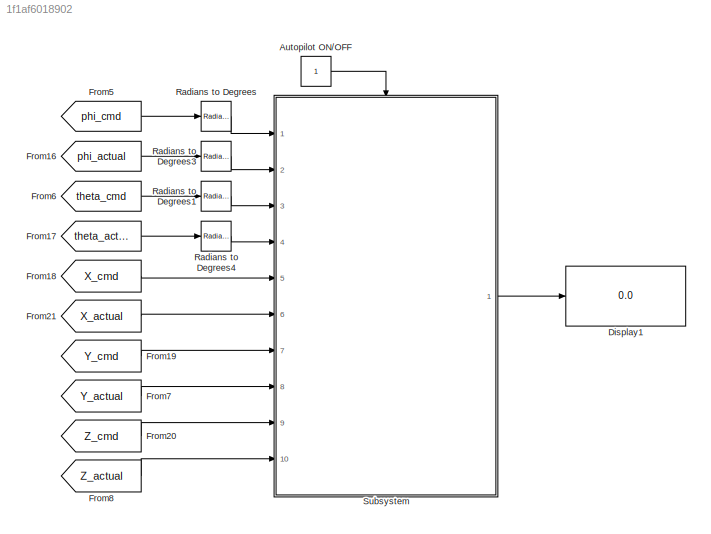
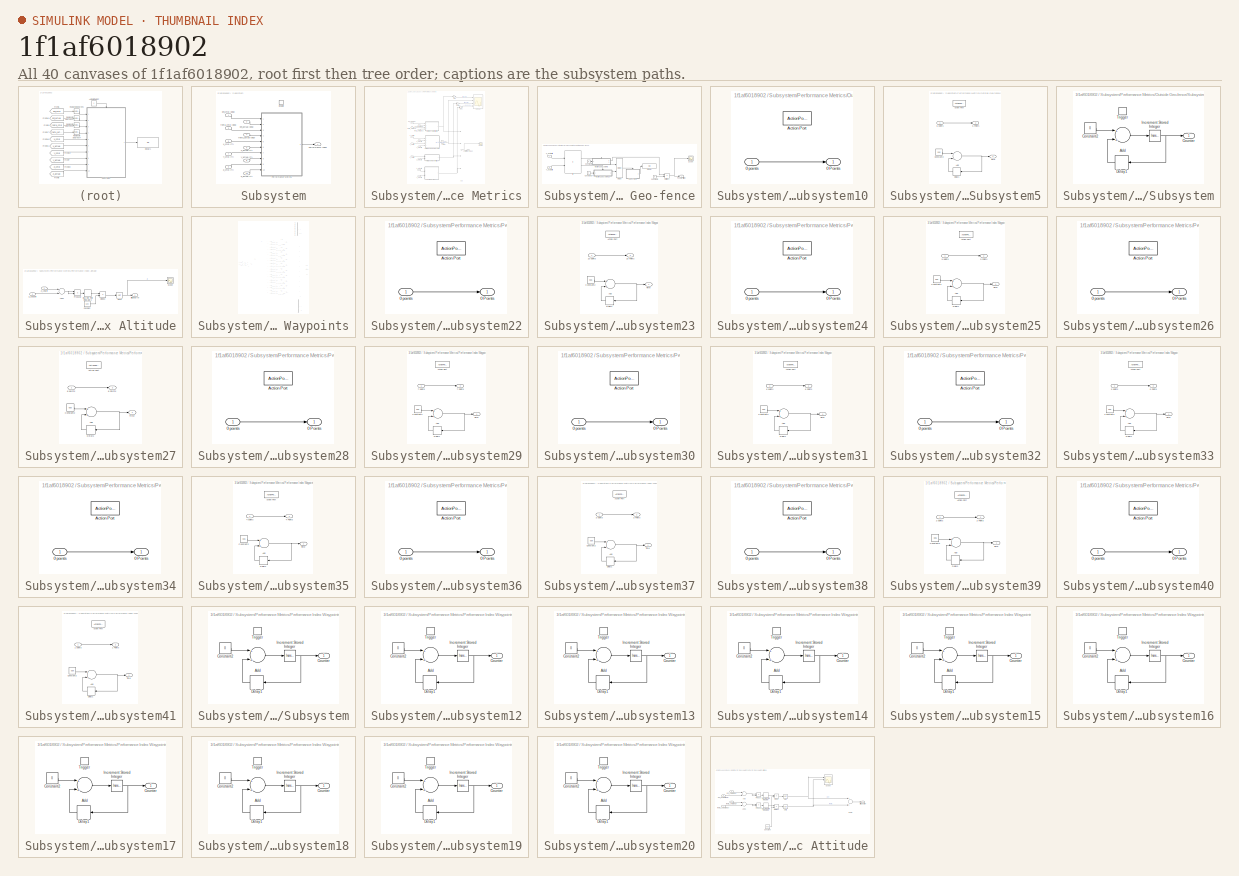
[diagram: thumbnail index - all 40 canvases of the model, root first then tree order]
MODEL slx_1f1af6018902
KIND model
CONFIG AbsTol = auto
CONFIG EnableMultiTasking = off
CONFIG FixedStep = auto
CONFIG MaxStep = auto
CONFIG MinStep = auto
CONFIG RelTol = 1e-3
CONFIG SampleTimeConstraint = Unconstrained
CONFIG Solver = VariableStepAuto
CONFIG SolverName = VariableStepAuto
CONFIG StartTime = 0.0
CONFIG StopTime = 10.0
BLOCK [Constant] Autopilot ON//OFF
BLOCK [Display] Display1
  Decimation = 1
  Ports = [1]
BLOCK [From] From16
  GotoTag = phi_actual
BLOCK [From] From17
  GotoTag = theta_actual
BLOCK [From] From18
  GotoTag = X_cmd
BLOCK [From] From19
  GotoTag = Y_cmd
BLOCK [From] From20
  GotoTag = Z_cmd
BLOCK [From] From21
  GotoTag = X_actual
BLOCK [From] From5
  GotoTag = phi_cmd
BLOCK [From] From6
  GotoTag = theta_cmd
BLOCK [From] From7
  GotoTag = Y_actual
BLOCK [From] From8
  GotoTag = Z_actual
BLOCK [Reference] Radians to Degrees  REF=simulink_extras/Transformations/Radians
to Degrees
  Ports = [1, 1]
  SourceBlock = simulink_extras/Transformations/Radians\nto Degrees
  SourceProductBaseCode = SL
  SourceProductName = Simulink
  SourceType = RadiansToDegrees
BLOCK [Reference] Radians to Degrees1  REF=simulink_extras/Transformations/Radians
to Degrees
  Ports = [1, 1]
  SourceBlock = simulink_extras/Transformations/Radians\nto Degrees
  SourceProductBaseCode = SL
  SourceProductName = Simulink
  SourceType = RadiansToDegrees
BLOCK [Reference] Radians to Degrees3  REF=simulink_extras/Transformations/Radians
to Degrees
  Ports = [1, 1]
  SourceBlock = simulink_extras/Transformations/Radians\nto Degrees
  SourceProductBaseCode = SL
  SourceProductName = Simulink
  SourceType = RadiansToDegrees
BLOCK [Reference] Radians to Degrees4  REF=simulink_extras/Transformations/Radians
to Degrees
  Ports = [1, 1]
  SourceBlock = simulink_extras/Transformations/Radians\nto Degrees
  SourceProductBaseCode = SL
  SourceProductName = Simulink
  SourceType = RadiansToDegrees
BLOCK [SubSystem] Subsystem
  Ports = [10, 1, 1]
  RequestExecContextInheritance = off
BLOCK [EnablePort] Subsystem/Enable
  Ports = []
BLOCK [Outport] Subsystem/Performance Index
  IconDisplay = Port number
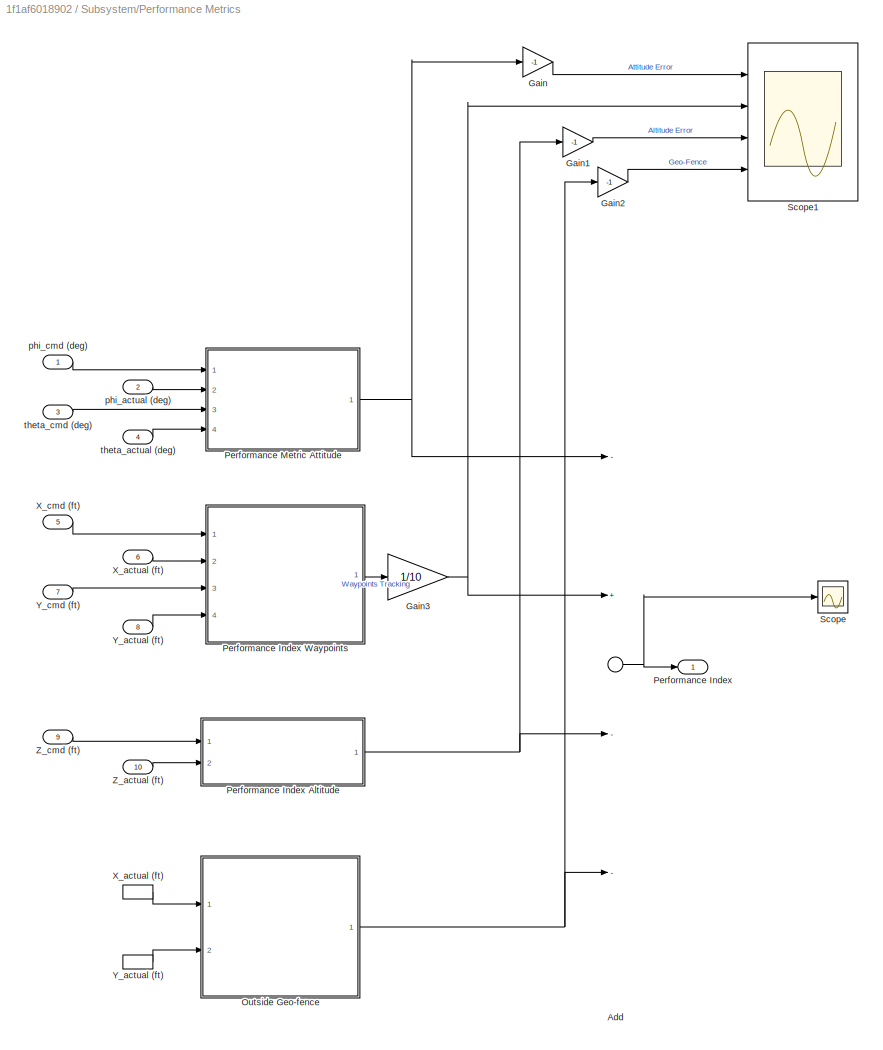
BLOCK [SubSystem] Subsystem/Performance Metrics
  Ports = [10, 1]
  RequestExecContextInheritance = off
BLOCK [Sum] Subsystem/Performance Metrics/Add
  InputSameDT = off
  Inputs = -+--
  OutDataTypeStr = Inherit: Inherit via internal rule
  Ports = [4, 1]
  SaturateOnIntegerOverflow = off
BLOCK [Gain] Subsystem/Performance Metrics/Gain
  Gain = -1
  OutDataTypeStr = Inherit: Inherit via internal rule
  ParamDataTypeStr = Inherit: Inherit via internal rule
  SaturateOnIntegerOverflow = off
BLOCK [Gain] Subsystem/Performance Metrics/Gain1
  Gain = -1
  OutDataTypeStr = Inherit: Inherit via internal rule
  ParamDataTypeStr = Inherit: Inherit via internal rule
  SaturateOnIntegerOverflow = off
BLOCK [Gain] Subsystem/Performance Metrics/Gain2
  Gain = -1
  OutDataTypeStr = Inherit: Inherit via internal rule
  ParamDataTypeStr = Inherit: Inherit via internal rule
  SaturateOnIntegerOverflow = off
BLOCK [Gain] Subsystem/Performance Metrics/Gain3
  Gain = 1/10
  OutDataTypeStr = Inherit: Inherit via internal rule
  ParamDataTypeStr = Inherit: Inherit via internal rule
  SaturateOnIntegerOverflow = off
BLOCK [SubSystem] Subsystem/Performance Metrics/Outside Geo-fence
  Ports = [2, 1]
  RequestExecContextInheritance = off
BLOCK [Constant] Subsystem/Performance Metrics/Outside Geo-fence/Constant14
  Value = 0
BLOCK [Constant] Subsystem/Performance Metrics/Outside Geo-fence/Constant2
  Value = 5
BLOCK [Constant] Subsystem/Performance Metrics/Outside Geo-fence/Constant9
  Value = 5
BLOCK [Display] Subsystem/Performance Metrics/Outside Geo-fence/Display
  Decimation = 1
  Ports = [1]
BLOCK [SubSystem] Subsystem/Performance Metrics/Outside Geo-fence/If Action Subsystem10
  Ports = [1, 1, 0, 0, 0, 0, 0, 1]
  RequestExecContextInheritance = off
  TreatAsAtomicUnit = on
BLOCK [Outport] Subsystem/Performance Metrics/Outside Geo-fence/If Action Subsystem10/0 Points
  IconDisplay = Port number
BLOCK [Inport] Subsystem/Performance Metrics/Outside Geo-fence/If Action Subsystem10/0 points  
  IconDisplay = Port number
BLOCK [ActionPort] Subsystem/Performance Metrics/Outside Geo-fence/If Action Subsystem10/Action Port
  InitializeStates = reset
BLOCK [SubSystem] Subsystem/Performance Metrics/Outside Geo-fence/If Action Subsystem5
  Ports = [1, 2, 0, 0, 0, 0, 0, 1]
  RequestExecContextInheritance = off
  TreatAsAtomicUnit = on
BLOCK [Outport] Subsystem/Performance Metrics/Outside Geo-fence/If Action Subsystem5/5 Points
  IconDisplay = Port number
  Port = 2
BLOCK [Inport] Subsystem/Performance Metrics/Outside Geo-fence/If Action Subsystem5/5 points  
  IconDisplay = Port number
BLOCK [ActionPort] Subsystem/Performance Metrics/Outside Geo-fence/If Action Subsystem5/Action Port
BLOCK [Sum] Subsystem/Performance Metrics/Outside Geo-fence/If Action Subsystem5/Add
  InputSameDT = off
  OutDataTypeStr = Inherit: Inherit via internal rule
  Ports = [2, 1]
  SaturateOnIntegerOverflow = off
BLOCK [Constant] Subsystem/Performance Metrics/Outside Geo-fence/If Action Subsystem5/Constant2
  Value = 0.05
BLOCK [Delay] Subsystem/Performance Metrics/Outside Geo-fence/If Action Subsystem5/Delay1
  DelayLength = 1
  InitialCondition = 0
  InputPortMap = u0
  Ports = [1, 1]
BLOCK [Outport] Subsystem/Performance Metrics/Outside Geo-fence/If Action Subsystem5/Time
  IconDisplay = Port number
BLOCK [If] Subsystem/Performance Metrics/Outside Geo-fence/If1
  IfExpression = u2<0 | u1<0 |  u2>2750 | u1>4750
  NumInputs = 2
  Ports = [2, 2]
BLOCK [Merge] Subsystem/Performance Metrics/Outside Geo-fence/Merge
  Ports = [2, 1]
BLOCK [Product] Subsystem/Performance Metrics/Outside Geo-fence/Multiply1
  InputSameDT = off
  OutDataTypeStr = Inherit: Inherit via internal rule
  Ports = [2, 1]
  RndMeth = Floor
  SaturateOnIntegerOverflow = off
BLOCK [Outport] Subsystem/Performance Metrics/Outside Geo-fence/Penalty = f(time)
  IconDisplay = Port number
BLOCK [Scope] Subsystem/Performance Metrics/Outside Geo-fence/Scope
  Floating = off
  NumInputPorts = 1
  Ports = [1]
  ScopeSpecificationString = Simulink.scopes.TimeScopeBlockCfg('CurrentConfiguration', extmgr.ConfigurationSet(extmgr.Configuration('Core','General UI',true),extmgr.Configuration('Core','Source UI',true),extmgr.Configuration('Sources','WiredSimulink',true,'DataLoggingVariableName','ScopeData2'),extmgr.Configuration('Visuals','Time Domain',true,'SerializedDisplays',{struct('MinYLimReal','-1.00000','MaxYLimReal','1.00000','YLab...<+1401ch>
BLOCK [SubSystem] Subsystem/Performance Metrics/Outside Geo-fence/Subsystem
  Ports = [0, 1, 0, 1]
  RequestExecContextInheritance = off
BLOCK [Sum] Subsystem/Performance Metrics/Outside Geo-fence/Subsystem/Add
  InputSameDT = off
  OutDataTypeStr = Inherit: Inherit via internal rule
  Ports = [2, 1]
  SaturateOnIntegerOverflow = off
BLOCK [Constant] Subsystem/Performance Metrics/Outside Geo-fence/Subsystem/Constant2
  Value = 0
BLOCK [Outport] Subsystem/Performance Metrics/Outside Geo-fence/Subsystem/Counter
  IconDisplay = Port number
BLOCK [Delay] Subsystem/Performance Metrics/Outside Geo-fence/Subsystem/Delay1
  DelayLength = 1
  InitialCondition = 0
  InputPortMap = u0
  Ports = [1, 1]
BLOCK [Reference] Subsystem/Performance Metrics/Outside Geo-fence/Subsystem/Increment Stored Integer  REF=simulink/Additional Math
& Discrete/Additional Math:
Increment - Decrement/Increment
Stored Integer
  Ports = [1, 1]
  SourceBlock = simulink/Additional Math\n& Discrete/Additional Math:\nIncrement - Decrement/Increment\nStored Integer
  SourceProductBaseCode = SL
  SourceProductName = Simulink
  SourceType = Stored Integer Value Increment
BLOCK [TriggerPort] Subsystem/Performance Metrics/Outside Geo-fence/Subsystem/Trigger
  PortDimensions = 1
  Ports = []
  StatesWhenEnabling = held
  VariantControl = Variant
BLOCK [Inport] Subsystem/Performance Metrics/Outside Geo-fence/X_actual (ft)
  IconDisplay = Port number
BLOCK [Inport] Subsystem/Performance Metrics/Outside Geo-fence/Y_actual (ft)
  IconDisplay = Port number
  Port = 2
BLOCK [Outport] Subsystem/Performance Metrics/Performance Index
  IconDisplay = Port number
BLOCK [SubSystem] Subsystem/Performance Metrics/Performance Index Altitude
  Ports = [2, 1]
  RequestExecContextInheritance = off
BLOCK [Sum] Subsystem/Performance Metrics/Performance Index Altitude/Add2
  InputSameDT = off
  Inputs = +-
  OutDataTypeStr = Inherit: Inherit via internal rule
  Ports = [2, 1]
  SaturateOnIntegerOverflow = off
BLOCK [Outport] Subsystem/Performance Metrics/Performance Index Altitude/Altitude Error
  IconDisplay = Port number
BLOCK [Constant] Subsystem/Performance Metrics/Performance Index Altitude/Constant
  Value = 600
BLOCK [DiscreteIntegrator] Subsystem/Performance Metrics/Performance Index Altitude/Discrete-Time Integrator2
  ICPrevOutput = DiscIntNeverNeededParam
  ICPrevScaledInput = DiscIntNeverNeededParam
  Ports = [1, 1]
  SampleTime = -1
BLOCK [Product] Subsystem/Performance Metrics/Performance Index Altitude/Divide2
  InputSameDT = off
  Inputs = */
  OutDataTypeStr = Inherit: Inherit via internal rule
  Ports = [2, 1]
  RndMeth = Floor
  SaturateOnIntegerOverflow = off
BLOCK [Product] Subsystem/Performance Metrics/Performance Index Altitude/Product2
  InputSameDT = off
  OutDataTypeStr = Inherit: Inherit via internal rule
  Ports = [2, 1]
  SaturateOnIntegerOverflow = off
BLOCK [Scope] Subsystem/Performance Metrics/Performance Index Altitude/Scope
  Floating = off
  NumInputPorts = 1
  Ports = [1]
  ScopeSpecificationString = Simulink.scopes.TimeScopeBlockCfg('CurrentConfiguration', extmgr.ConfigurationSet(extmgr.Configuration('Core','General UI',true),extmgr.Configuration('Core','Source UI',true),extmgr.Configuration('Sources','WiredSimulink',true,'DataLoggingVariableName','ScopeData5'),extmgr.Configuration('Visuals','Time Domain',true,'SerializedDisplays',{struct('MinYLimReal','-5.16934','MaxYLimReal','46.52405','YLa...<+1388ch>
BLOCK [Sqrt] Subsystem/Performance Metrics/Performance Index Altitude/Sqrt2
BLOCK [Inport] Subsystem/Performance Metrics/Performance Index Altitude/Z_actual (ft)
  IconDisplay = Port number
  Port = 2
BLOCK [Inport] Subsystem/Performance Metrics/Performance Index Altitude/Z_cmd (ft)
  IconDisplay = Port number
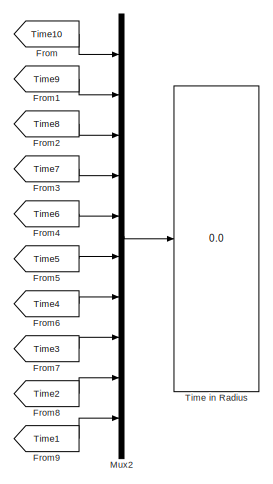
[diagram: Subsystem/Performance Metrics/Performance Index Waypoints - part 1/7, top right region]
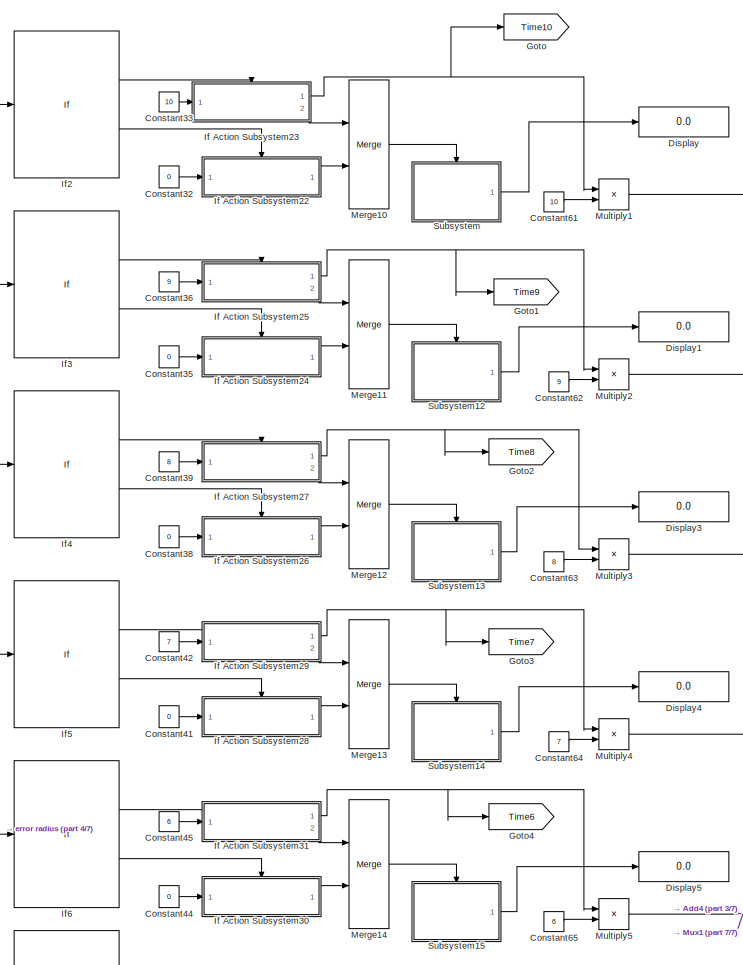
[diagram: Subsystem/Performance Metrics/Performance Index Waypoints - part 2/7, central region]
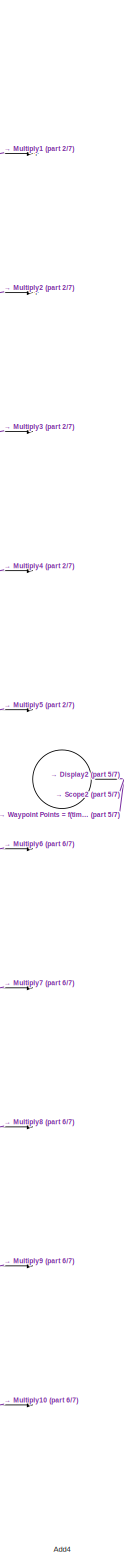
[diagram: Subsystem/Performance Metrics/Performance Index Waypoints - part 3/7, middle right region]
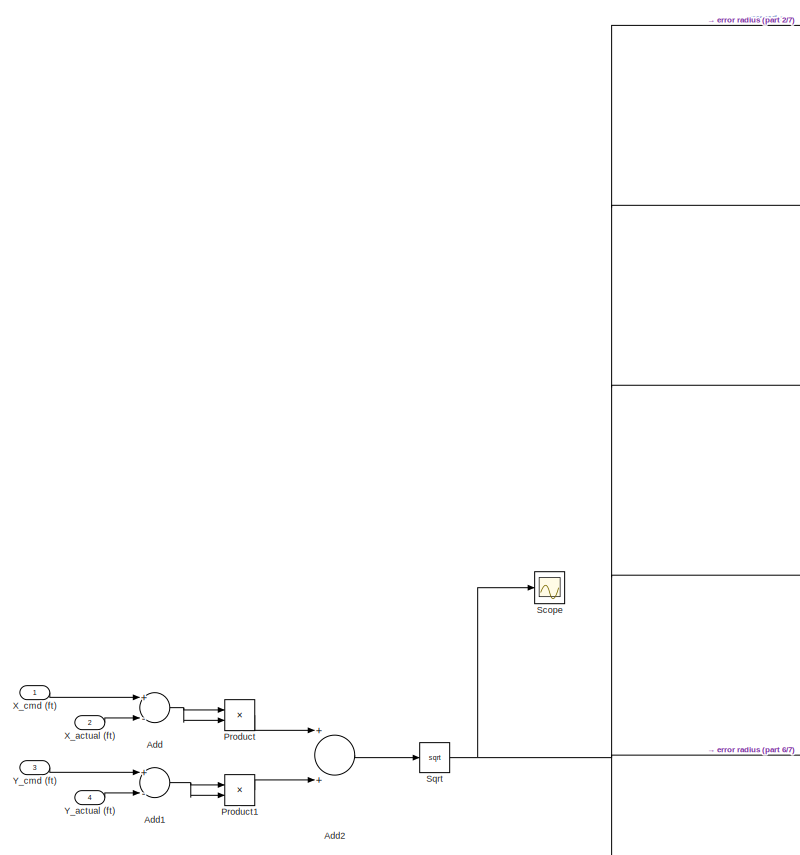
[diagram: Subsystem/Performance Metrics/Performance Index Waypoints - part 4/7, middle left region]
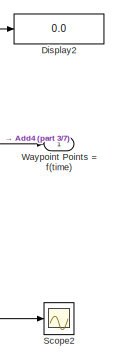
[diagram: Subsystem/Performance Metrics/Performance Index Waypoints - part 5/7, middle right region]
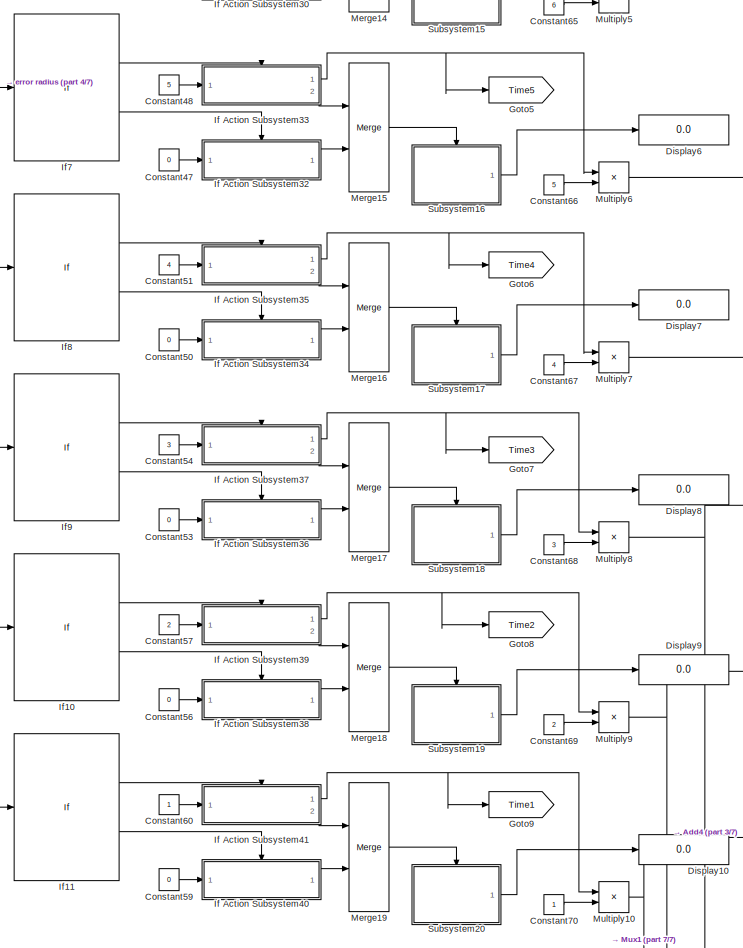
[diagram: Subsystem/Performance Metrics/Performance Index Waypoints - part 6/7, central region]
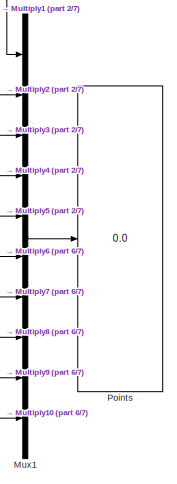
[diagram: Subsystem/Performance Metrics/Performance Index Waypoints - part 7/7, bottom right region]
BLOCK [SubSystem] Subsystem/Performance Metrics/Performance Index Waypoints
  Ports = [4, 1]
  RequestExecContextInheritance = off
BLOCK [Sum] Subsystem/Performance Metrics/Performance Index Waypoints/Add
  InputSameDT = off
  Inputs = +-
  OutDataTypeStr = Inherit: Inherit via internal rule
  Ports = [2, 1]
  SaturateOnIntegerOverflow = off
BLOCK [Sum] Subsystem/Performance Metrics/Performance Index Waypoints/Add1
  InputSameDT = off
  Inputs = +-
  OutDataTypeStr = Inherit: Inherit via internal rule
  Ports = [2, 1]
  SaturateOnIntegerOverflow = off
BLOCK [Sum] Subsystem/Performance Metrics/Performance Index Waypoints/Add2
  InputSameDT = off
  OutDataTypeStr = Inherit: Inherit via internal rule
  Ports = [2, 1]
  SaturateOnIntegerOverflow = off
BLOCK [Sum] Subsystem/Performance Metrics/Performance Index Waypoints/Add4
  InputSameDT = off
  Inputs = 10
  OutDataTypeStr = Inherit: Inherit via internal rule
  Ports = [10, 1]
  SaturateOnIntegerOverflow = off
BLOCK [Constant] Subsystem/Performance Metrics/Performance Index Waypoints/Constant32
  Value = 0
BLOCK [Constant] Subsystem/Performance Metrics/Performance Index Waypoints/Constant33
  Value = 10
BLOCK [Constant] Subsystem/Performance Metrics/Performance Index Waypoints/Constant35
  Value = 0
BLOCK [Constant] Subsystem/Performance Metrics/Performance Index Waypoints/Constant36
  Value = 9
BLOCK [Constant] Subsystem/Performance Metrics/Performance Index Waypoints/Constant38
  Value = 0
BLOCK [Constant] Subsystem/Performance Metrics/Performance Index Waypoints/Constant39
  Value = 8
BLOCK [Constant] Subsystem/Performance Metrics/Performance Index Waypoints/Constant41
  Value = 0
BLOCK [Constant] Subsystem/Performance Metrics/Performance Index Waypoints/Constant42
  Value = 7
BLOCK [Constant] Subsystem/Performance Metrics/Performance Index Waypoints/Constant44
  Value = 0
BLOCK [Constant] Subsystem/Performance Metrics/Performance Index Waypoints/Constant45
  Value = 6
BLOCK [Constant] Subsystem/Performance Metrics/Performance Index Waypoints/Constant47
  Value = 0
BLOCK [Constant] Subsystem/Performance Metrics/Performance Index Waypoints/Constant48
  Value = 5
BLOCK [Constant] Subsystem/Performance Metrics/Performance Index Waypoints/Constant50
  Value = 0
BLOCK [Constant] Subsystem/Performance Metrics/Performance Index Waypoints/Constant51
  Value = 4
BLOCK [Constant] Subsystem/Performance Metrics/Performance Index Waypoints/Constant53
  Value = 0
BLOCK [Constant] Subsystem/Performance Metrics/Performance Index Waypoints/Constant54
  Value = 3
BLOCK [Constant] Subsystem/Performance Metrics/Performance Index Waypoints/Constant56
  Value = 0
BLOCK [Constant] Subsystem/Performance Metrics/Performance Index Waypoints/Constant57
  Value = 2
BLOCK [Constant] Subsystem/Performance Metrics/Performance Index Waypoints/Constant59
  Value = 0
BLOCK [Constant] Subsystem/Performance Metrics/Performance Index Waypoints/Constant60
BLOCK [Constant] Subsystem/Performance Metrics/Performance Index Waypoints/Constant61
  Value = 10
BLOCK [Constant] Subsystem/Performance Metrics/Performance Index Waypoints/Constant62
  Value = 9
BLOCK [Constant] Subsystem/Performance Metrics/Performance Index Waypoints/Constant63
  Value = 8
BLOCK [Constant] Subsystem/Performance Metrics/Performance Index Waypoints/Constant64
  Value = 7
BLOCK [Constant] Subsystem/Performance Metrics/Performance Index Waypoints/Constant65
  Value = 6
BLOCK [Constant] Subsystem/Performance Metrics/Performance Index Waypoints/Constant66
  Value = 5
BLOCK [Constant] Subsystem/Performance Metrics/Performance Index Waypoints/Constant67
  Value = 4
BLOCK [Constant] Subsystem/Performance Metrics/Performance Index Waypoints/Constant68
  Value = 3
BLOCK [Constant] Subsystem/Performance Metrics/Performance Index Waypoints/Constant69
  Value = 2
BLOCK [Constant] Subsystem/Performance Metrics/Performance Index Waypoints/Constant70
BLOCK [Display] Subsystem/Performance Metrics/Performance Index Waypoints/Display
  Decimation = 1
  Ports = [1]
BLOCK [Display] Subsystem/Performance Metrics/Performance Index Waypoints/Display1
  Decimation = 1
  Ports = [1]
BLOCK [Display] Subsystem/Performance Metrics/Performance Index Waypoints/Display10
  Decimation = 1
  Ports = [1]
BLOCK [Display] Subsystem/Performance Metrics/Performance Index Waypoints/Display2
  Decimation = 1
  Ports = [1]
BLOCK [Display] Subsystem/Performance Metrics/Performance Index Waypoints/Display3
  Decimation = 1
  Ports = [1]
BLOCK [Display] Subsystem/Performance Metrics/Performance Index Waypoints/Display4
  Decimation = 1
  Ports = [1]
BLOCK [Display] Subsystem/Performance Metrics/Performance Index Waypoints/Display5
  Decimation = 1
  Ports = [1]
BLOCK [Display] Subsystem/Performance Metrics/Performance Index Waypoints/Display6
  Decimation = 1
  Ports = [1]
BLOCK [Display] Subsystem/Performance Metrics/Performance Index Waypoints/Display7
  Decimation = 1
  Ports = [1]
BLOCK [Display] Subsystem/Performance Metrics/Performance Index Waypoints/Display8
  Decimation = 1
  Ports = [1]
BLOCK [Display] Subsystem/Performance Metrics/Performance Index Waypoints/Display9
  Decimation = 1
  Ports = [1]
BLOCK [From] Subsystem/Performance Metrics/Performance Index Waypoints/From
  GotoTag = Time10
BLOCK [From] Subsystem/Performance Metrics/Performance Index Waypoints/From1
  GotoTag = Time9
BLOCK [From] Subsystem/Performance Metrics/Performance Index Waypoints/From2
  GotoTag = Time8
BLOCK [From] Subsystem/Performance Metrics/Performance Index Waypoints/From3
  GotoTag = Time7
BLOCK [From] Subsystem/Performance Metrics/Performance Index Waypoints/From4
  GotoTag = Time6
BLOCK [From] Subsystem/Performance Metrics/Performance Index Waypoints/From5
  GotoTag = Time5
BLOCK [From] Subsystem/Performance Metrics/Performance Index Waypoints/From6
  GotoTag = Time4
BLOCK [From] Subsystem/Performance Metrics/Performance Index Waypoints/From7
  GotoTag = Time3
BLOCK [From] Subsystem/Performance Metrics/Performance Index Waypoints/From8
  GotoTag = Time2
BLOCK [From] Subsystem/Performance Metrics/Performance Index Waypoints/From9
  GotoTag = Time1
BLOCK [Goto] Subsystem/Performance Metrics/Performance Index Waypoints/Goto
  GotoTag = Time10
BLOCK [Goto] Subsystem/Performance Metrics/Performance Index Waypoints/Goto1
  GotoTag = Time9
BLOCK [Goto] Subsystem/Performance Metrics/Performance Index Waypoints/Goto2
  GotoTag = Time8
BLOCK [Goto] Subsystem/Performance Metrics/Performance Index Waypoints/Goto3
  GotoTag = Time7
BLOCK [Goto] Subsystem/Performance Metrics/Performance Index Waypoints/Goto4
  GotoTag = Time6
BLOCK [Goto] Subsystem/Performance Metrics/Performance Index Waypoints/Goto5
  GotoTag = Time5
BLOCK [Goto] Subsystem/Performance Metrics/Performance Index Waypoints/Goto6
  GotoTag = Time4
BLOCK [Goto] Subsystem/Performance Metrics/Performance Index Waypoints/Goto7
  GotoTag = Time3
BLOCK [Goto] Subsystem/Performance Metrics/Performance Index Waypoints/Goto8
  GotoTag = Time2
BLOCK [Goto] Subsystem/Performance Metrics/Performance Index Waypoints/Goto9
  GotoTag = Time1
BLOCK [SubSystem] Subsystem/Performance Metrics/Performance Index Waypoints/If Action Subsystem22
  Ports = [1, 1, 0, 0, 0, 0, 0, 1]
  RequestExecContextInheritance = off
  TreatAsAtomicUnit = on
BLOCK [Outport] Subsystem/Performance Metrics/Performance Index Waypoints/If Action Subsystem22/0 Points
  IconDisplay = Port number
BLOCK [Inport] Subsystem/Performance Metrics/Performance Index Waypoints/If Action Subsystem22/0 points  
  IconDisplay = Port number
BLOCK [ActionPort] Subsystem/Performance Metrics/Performance Index Waypoints/If Action Subsystem22/Action Port
  InitializeStates = reset
BLOCK [SubSystem] Subsystem/Performance Metrics/Performance Index Waypoints/If Action Subsystem23
  Ports = [1, 2, 0, 0, 0, 0, 0, 1]
  RequestExecContextInheritance = off
  TreatAsAtomicUnit = on
BLOCK [Outport] Subsystem/Performance Metrics/Performance Index Waypoints/If Action Subsystem23/10 Points
  IconDisplay = Port number
  Port = 2
BLOCK [Inport] Subsystem/Performance Metrics/Performance Index Waypoints/If Action Subsystem23/10 points  
  IconDisplay = Port number
BLOCK [ActionPort] Subsystem/Performance Metrics/Performance Index Waypoints/If Action Subsystem23/Action Port
BLOCK [Sum] Subsystem/Performance Metrics/Performance Index Waypoints/If Action Subsystem23/Add
  InputSameDT = off
  OutDataTypeStr = Inherit: Inherit via internal rule
  Ports = [2, 1]
  SaturateOnIntegerOverflow = off
BLOCK [Constant] Subsystem/Performance Metrics/Performance Index Waypoints/If Action Subsystem23/Constant2
  Value = 0.05
BLOCK [Delay] Subsystem/Performance Metrics/Performance Index Waypoints/If Action Subsystem23/Delay1
  DelayLength = 1
  InitialCondition = 0
  InputPortMap = u0
  Ports = [1, 1]
BLOCK [Outport] Subsystem/Performance Metrics/Performance Index Waypoints/If Action Subsystem23/Time
  IconDisplay = Port number
BLOCK [SubSystem] Subsystem/Performance Metrics/Performance Index Waypoints/If Action Subsystem24
  Ports = [1, 1, 0, 0, 0, 0, 0, 1]
  RequestExecContextInheritance = off
  TreatAsAtomicUnit = on
BLOCK [Outport] Subsystem/Performance Metrics/Performance Index Waypoints/If Action Subsystem24/0 Points
  IconDisplay = Port number
BLOCK [Inport] Subsystem/Performance Metrics/Performance Index Waypoints/If Action Subsystem24/0 points  
  IconDisplay = Port number
BLOCK [ActionPort] Subsystem/Performance Metrics/Performance Index Waypoints/If Action Subsystem24/Action Port
  InitializeStates = reset
BLOCK [SubSystem] Subsystem/Performance Metrics/Performance Index Waypoints/If Action Subsystem25
  Ports = [1, 2, 0, 0, 0, 0, 0, 1]
  RequestExecContextInheritance = off
  TreatAsAtomicUnit = on
BLOCK [Outport] Subsystem/Performance Metrics/Performance Index Waypoints/If Action Subsystem25/9 Points
  IconDisplay = Port number
  Port = 2
BLOCK [Inport] Subsystem/Performance Metrics/Performance Index Waypoints/If Action Subsystem25/9 points  
  IconDisplay = Port number
BLOCK [ActionPort] Subsystem/Performance Metrics/Performance Index Waypoints/If Action Subsystem25/Action Port
BLOCK [Sum] Subsystem/Performance Metrics/Performance Index Waypoints/If Action Subsystem25/Add
  InputSameDT = off
  OutDataTypeStr = Inherit: Inherit via internal rule
  Ports = [2, 1]
  SaturateOnIntegerOverflow = off
BLOCK [Constant] Subsystem/Performance Metrics/Performance Index Waypoints/If Action Subsystem25/Constant2
  Value = 0.05
BLOCK [Delay] Subsystem/Performance Metrics/Performance Index Waypoints/If Action Subsystem25/Delay1
  DelayLength = 1
  InitialCondition = 0
  InputPortMap = u0
  Ports = [1, 1]
BLOCK [Outport] Subsystem/Performance Metrics/Performance Index Waypoints/If Action Subsystem25/Time
  IconDisplay = Port number
BLOCK [SubSystem] Subsystem/Performance Metrics/Performance Index Waypoints/If Action Subsystem26
  Ports = [1, 1, 0, 0, 0, 0, 0, 1]
  RequestExecContextInheritance = off
  TreatAsAtomicUnit = on
BLOCK [Outport] Subsystem/Performance Metrics/Performance Index Waypoints/If Action Subsystem26/0 Points
  IconDisplay = Port number
BLOCK [Inport] Subsystem/Performance Metrics/Performance Index Waypoints/If Action Subsystem26/0 points  
  IconDisplay = Port number
BLOCK [ActionPort] Subsystem/Performance Metrics/Performance Index Waypoints/If Action Subsystem26/Action Port
  InitializeStates = reset
BLOCK [SubSystem] Subsystem/Performance Metrics/Performance Index Waypoints/If Action Subsystem27
  Ports = [1, 2, 0, 0, 0, 0, 0, 1]
  RequestExecContextInheritance = off
  TreatAsAtomicUnit = on
BLOCK [Outport] Subsystem/Performance Metrics/Performance Index Waypoints/If Action Subsystem27/8 Points
  IconDisplay = Port number
  Port = 2
BLOCK [Inport] Subsystem/Performance Metrics/Performance Index Waypoints/If Action Subsystem27/8 points  
  IconDisplay = Port number
BLOCK [ActionPort] Subsystem/Performance Metrics/Performance Index Waypoints/If Action Subsystem27/Action Port
BLOCK [Sum] Subsystem/Performance Metrics/Performance Index Waypoints/If Action Subsystem27/Add
  InputSameDT = off
  OutDataTypeStr = Inherit: Inherit via internal rule
  Ports = [2, 1]
  SaturateOnIntegerOverflow = off
BLOCK [Constant] Subsystem/Performance Metrics/Performance Index Waypoints/If Action Subsystem27/Constant2
  Value = 0.05
BLOCK [Delay] Subsystem/Performance Metrics/Performance Index Waypoints/If Action Subsystem27/Delay1
  DelayLength = 1
  InitialCondition = 0
  InputPortMap = u0
  Ports = [1, 1]
BLOCK [Outport] Subsystem/Performance Metrics/Performance Index Waypoints/If Action Subsystem27/Time
  IconDisplay = Port number
BLOCK [SubSystem] Subsystem/Performance Metrics/Performance Index Waypoints/If Action Subsystem28
  Ports = [1, 1, 0, 0, 0, 0, 0, 1]
  RequestExecContextInheritance = off
  TreatAsAtomicUnit = on
BLOCK [Outport] Subsystem/Performance Metrics/Performance Index Waypoints/If Action Subsystem28/0 Points
  IconDisplay = Port number
BLOCK [Inport] Subsystem/Performance Metrics/Performance Index Waypoints/If Action Subsystem28/0 points  
  IconDisplay = Port number
BLOCK [ActionPort] Subsystem/Performance Metrics/Performance Index Waypoints/If Action Subsystem28/Action Port
  InitializeStates = reset
BLOCK [SubSystem] Subsystem/Performance Metrics/Performance Index Waypoints/If Action Subsystem29
  Ports = [1, 2, 0, 0, 0, 0, 0, 1]
  RequestExecContextInheritance = off
  TreatAsAtomicUnit = on
BLOCK [Outport] Subsystem/Performance Metrics/Performance Index Waypoints/If Action Subsystem29/7 Points
  IconDisplay = Port number
  Port = 2
BLOCK [Inport] Subsystem/Performance Metrics/Performance Index Waypoints/If Action Subsystem29/7 points  
  IconDisplay = Port number
BLOCK [ActionPort] Subsystem/Performance Metrics/Performance Index Waypoints/If Action Subsystem29/Action Port
BLOCK [Sum] Subsystem/Performance Metrics/Performance Index Waypoints/If Action Subsystem29/Add
  InputSameDT = off
  OutDataTypeStr = Inherit: Inherit via internal rule
  Ports = [2, 1]
  SaturateOnIntegerOverflow = off
BLOCK [Constant] Subsystem/Performance Metrics/Performance Index Waypoints/If Action Subsystem29/Constant2
  Value = 0.05
BLOCK [Delay] Subsystem/Performance Metrics/Performance Index Waypoints/If Action Subsystem29/Delay1
  DelayLength = 1
  InitialCondition = 0
  InputPortMap = u0
  Ports = [1, 1]
BLOCK [Outport] Subsystem/Performance Metrics/Performance Index Waypoints/If Action Subsystem29/Time
  IconDisplay = Port number
BLOCK [SubSystem] Subsystem/Performance Metrics/Performance Index Waypoints/If Action Subsystem30
  Ports = [1, 1, 0, 0, 0, 0, 0, 1]
  RequestExecContextInheritance = off
  TreatAsAtomicUnit = on
BLOCK [Outport] Subsystem/Performance Metrics/Performance Index Waypoints/If Action Subsystem30/0 Points
  IconDisplay = Port number
BLOCK [Inport] Subsystem/Performance Metrics/Performance Index Waypoints/If Action Subsystem30/0 points  
  IconDisplay = Port number
BLOCK [ActionPort] Subsystem/Performance Metrics/Performance Index Waypoints/If Action Subsystem30/Action Port
  InitializeStates = reset
BLOCK [SubSystem] Subsystem/Performance Metrics/Performance Index Waypoints/If Action Subsystem31
  Ports = [1, 2, 0, 0, 0, 0, 0, 1]
  RequestExecContextInheritance = off
  TreatAsAtomicUnit = on
BLOCK [Outport] Subsystem/Performance Metrics/Performance Index Waypoints/If Action Subsystem31/6 Points
  IconDisplay = Port number
  Port = 2
BLOCK [Inport] Subsystem/Performance Metrics/Performance Index Waypoints/If Action Subsystem31/6 points  
  IconDisplay = Port number
BLOCK [ActionPort] Subsystem/Performance Metrics/Performance Index Waypoints/If Action Subsystem31/Action Port
BLOCK [Sum] Subsystem/Performance Metrics/Performance Index Waypoints/If Action Subsystem31/Add
  InputSameDT = off
  OutDataTypeStr = Inherit: Inherit via internal rule
  Ports = [2, 1]
  SaturateOnIntegerOverflow = off
BLOCK [Constant] Subsystem/Performance Metrics/Performance Index Waypoints/If Action Subsystem31/Constant2
  Value = 0.05
BLOCK [Delay] Subsystem/Performance Metrics/Performance Index Waypoints/If Action Subsystem31/Delay1
  DelayLength = 1
  InitialCondition = 0
  InputPortMap = u0
  Ports = [1, 1]
BLOCK [Outport] Subsystem/Performance Metrics/Performance Index Waypoints/If Action Subsystem31/Time
  IconDisplay = Port number
BLOCK [SubSystem] Subsystem/Performance Metrics/Performance Index Waypoints/If Action Subsystem32
  Ports = [1, 1, 0, 0, 0, 0, 0, 1]
  RequestExecContextInheritance = off
  TreatAsAtomicUnit = on
BLOCK [Outport] Subsystem/Performance Metrics/Performance Index Waypoints/If Action Subsystem32/0 Points
  IconDisplay = Port number
BLOCK [Inport] Subsystem/Performance Metrics/Performance Index Waypoints/If Action Subsystem32/0 points  
  IconDisplay = Port number
BLOCK [ActionPort] Subsystem/Performance Metrics/Performance Index Waypoints/If Action Subsystem32/Action Port
  InitializeStates = reset
BLOCK [SubSystem] Subsystem/Performance Metrics/Performance Index Waypoints/If Action Subsystem33
  Ports = [1, 2, 0, 0, 0, 0, 0, 1]
  RequestExecContextInheritance = off
  TreatAsAtomicUnit = on
BLOCK [Outport] Subsystem/Performance Metrics/Performance Index Waypoints/If Action Subsystem33/5 Points
  IconDisplay = Port number
  Port = 2
BLOCK [Inport] Subsystem/Performance Metrics/Performance Index Waypoints/If Action Subsystem33/5 points  
  IconDisplay = Port number
BLOCK [ActionPort] Subsystem/Performance Metrics/Performance Index Waypoints/If Action Subsystem33/Action Port
BLOCK [Sum] Subsystem/Performance Metrics/Performance Index Waypoints/If Action Subsystem33/Add
  InputSameDT = off
  OutDataTypeStr = Inherit: Inherit via internal rule
  Ports = [2, 1]
  SaturateOnIntegerOverflow = off
BLOCK [Constant] Subsystem/Performance Metrics/Performance Index Waypoints/If Action Subsystem33/Constant2
  Value = 0.05
BLOCK [Delay] Subsystem/Performance Metrics/Performance Index Waypoints/If Action Subsystem33/Delay1
  DelayLength = 1
  InitialCondition = 0
  InputPortMap = u0
  Ports = [1, 1]
BLOCK [Outport] Subsystem/Performance Metrics/Performance Index Waypoints/If Action Subsystem33/Time
  IconDisplay = Port number
BLOCK [SubSystem] Subsystem/Performance Metrics/Performance Index Waypoints/If Action Subsystem34
  Ports = [1, 1, 0, 0, 0, 0, 0, 1]
  RequestExecContextInheritance = off
  TreatAsAtomicUnit = on
BLOCK [Outport] Subsystem/Performance Metrics/Performance Index Waypoints/If Action Subsystem34/0 Points
  IconDisplay = Port number
BLOCK [Inport] Subsystem/Performance Metrics/Performance Index Waypoints/If Action Subsystem34/0 points  
  IconDisplay = Port number
BLOCK [ActionPort] Subsystem/Performance Metrics/Performance Index Waypoints/If Action Subsystem34/Action Port
  InitializeStates = reset
BLOCK [SubSystem] Subsystem/Performance Metrics/Performance Index Waypoints/If Action Subsystem35
  Ports = [1, 2, 0, 0, 0, 0, 0, 1]
  RequestExecContextInheritance = off
  TreatAsAtomicUnit = on
BLOCK [Outport] Subsystem/Performance Metrics/Performance Index Waypoints/If Action Subsystem35/4 Points
  IconDisplay = Port number
  Port = 2
BLOCK [Inport] Subsystem/Performance Metrics/Performance Index Waypoints/If Action Subsystem35/4 points  
  IconDisplay = Port number
BLOCK [ActionPort] Subsystem/Performance Metrics/Performance Index Waypoints/If Action Subsystem35/Action Port
BLOCK [Sum] Subsystem/Performance Metrics/Performance Index Waypoints/If Action Subsystem35/Add
  InputSameDT = off
  OutDataTypeStr = Inherit: Inherit via internal rule
  Ports = [2, 1]
  SaturateOnIntegerOverflow = off
BLOCK [Constant] Subsystem/Performance Metrics/Performance Index Waypoints/If Action Subsystem35/Constant2
  Value = 0.05
BLOCK [Delay] Subsystem/Performance Metrics/Performance Index Waypoints/If Action Subsystem35/Delay1
  DelayLength = 1
  InitialCondition = 0
  InputPortMap = u0
  Ports = [1, 1]
BLOCK [Outport] Subsystem/Performance Metrics/Performance Index Waypoints/If Action Subsystem35/Time
  IconDisplay = Port number
BLOCK [SubSystem] Subsystem/Performance Metrics/Performance Index Waypoints/If Action Subsystem36
  Ports = [1, 1, 0, 0, 0, 0, 0, 1]
  RequestExecContextInheritance = off
  TreatAsAtomicUnit = on
BLOCK [Outport] Subsystem/Performance Metrics/Performance Index Waypoints/If Action Subsystem36/0 Points
  IconDisplay = Port number
BLOCK [Inport] Subsystem/Performance Metrics/Performance Index Waypoints/If Action Subsystem36/0 points  
  IconDisplay = Port number
BLOCK [ActionPort] Subsystem/Performance Metrics/Performance Index Waypoints/If Action Subsystem36/Action Port
  InitializeStates = reset
BLOCK [SubSystem] Subsystem/Performance Metrics/Performance Index Waypoints/If Action Subsystem37
  Ports = [1, 2, 0, 0, 0, 0, 0, 1]
  RequestExecContextInheritance = off
  TreatAsAtomicUnit = on
BLOCK [Outport] Subsystem/Performance Metrics/Performance Index Waypoints/If Action Subsystem37/3 Points
  IconDisplay = Port number
  Port = 2
BLOCK [Inport] Subsystem/Performance Metrics/Performance Index Waypoints/If Action Subsystem37/3 points  
  IconDisplay = Port number
BLOCK [ActionPort] Subsystem/Performance Metrics/Performance Index Waypoints/If Action Subsystem37/Action Port
BLOCK [Sum] Subsystem/Performance Metrics/Performance Index Waypoints/If Action Subsystem37/Add
  InputSameDT = off
  OutDataTypeStr = Inherit: Inherit via internal rule
  Ports = [2, 1]
  SaturateOnIntegerOverflow = off
BLOCK [Constant] Subsystem/Performance Metrics/Performance Index Waypoints/If Action Subsystem37/Constant2
  Value = 0.05
BLOCK [Delay] Subsystem/Performance Metrics/Performance Index Waypoints/If Action Subsystem37/Delay1
  DelayLength = 1
  InitialCondition = 0
  InputPortMap = u0
  Ports = [1, 1]
BLOCK [Outport] Subsystem/Performance Metrics/Performance Index Waypoints/If Action Subsystem37/Time
  IconDisplay = Port number
BLOCK [SubSystem] Subsystem/Performance Metrics/Performance Index Waypoints/If Action Subsystem38
  Ports = [1, 1, 0, 0, 0, 0, 0, 1]
  RequestExecContextInheritance = off
  TreatAsAtomicUnit = on
BLOCK [Outport] Subsystem/Performance Metrics/Performance Index Waypoints/If Action Subsystem38/0 Points
  IconDisplay = Port number
BLOCK [Inport] Subsystem/Performance Metrics/Performance Index Waypoints/If Action Subsystem38/0 points  
  IconDisplay = Port number
BLOCK [ActionPort] Subsystem/Performance Metrics/Performance Index Waypoints/If Action Subsystem38/Action Port
  InitializeStates = reset
BLOCK [SubSystem] Subsystem/Performance Metrics/Performance Index Waypoints/If Action Subsystem39
  Ports = [1, 2, 0, 0, 0, 0, 0, 1]
  RequestExecContextInheritance = off
  TreatAsAtomicUnit = on
BLOCK [Outport] Subsystem/Performance Metrics/Performance Index Waypoints/If Action Subsystem39/2 Points
  IconDisplay = Port number
  Port = 2
BLOCK [Inport] Subsystem/Performance Metrics/Performance Index Waypoints/If Action Subsystem39/2 points  
  IconDisplay = Port number
BLOCK [ActionPort] Subsystem/Performance Metrics/Performance Index Waypoints/If Action Subsystem39/Action Port
BLOCK [Sum] Subsystem/Performance Metrics/Performance Index Waypoints/If Action Subsystem39/Add
  InputSameDT = off
  OutDataTypeStr = Inherit: Inherit via internal rule
  Ports = [2, 1]
  SaturateOnIntegerOverflow = off
BLOCK [Constant] Subsystem/Performance Metrics/Performance Index Waypoints/If Action Subsystem39/Constant2
  Value = 0.05
BLOCK [Delay] Subsystem/Performance Metrics/Performance Index Waypoints/If Action Subsystem39/Delay1
  DelayLength = 1
  InitialCondition = 0
  InputPortMap = u0
  Ports = [1, 1]
BLOCK [Outport] Subsystem/Performance Metrics/Performance Index Waypoints/If Action Subsystem39/Time
  IconDisplay = Port number
BLOCK [SubSystem] Subsystem/Performance Metrics/Performance Index Waypoints/If Action Subsystem40
  Ports = [1, 1, 0, 0, 0, 0, 0, 1]
  RequestExecContextInheritance = off
  TreatAsAtomicUnit = on
BLOCK [Outport] Subsystem/Performance Metrics/Performance Index Waypoints/If Action Subsystem40/0 Points
  IconDisplay = Port number
BLOCK [Inport] Subsystem/Performance Metrics/Performance Index Waypoints/If Action Subsystem40/0 points  
  IconDisplay = Port number
BLOCK [ActionPort] Subsystem/Performance Metrics/Performance Index Waypoints/If Action Subsystem40/Action Port
  InitializeStates = reset
BLOCK [SubSystem] Subsystem/Performance Metrics/Performance Index Waypoints/If Action Subsystem41
  Ports = [1, 2, 0, 0, 0, 0, 0, 1]
  RequestExecContextInheritance = off
  TreatAsAtomicUnit = on
BLOCK [Outport] Subsystem/Performance Metrics/Performance Index Waypoints/If Action Subsystem41/1 Points
  IconDisplay = Port number
  Port = 2
BLOCK [Inport] Subsystem/Performance Metrics/Performance Index Waypoints/If Action Subsystem41/1 points  
  IconDisplay = Port number
BLOCK [ActionPort] Subsystem/Performance Metrics/Performance Index Waypoints/If Action Subsystem41/Action Port
BLOCK [Sum] Subsystem/Performance Metrics/Performance Index Waypoints/If Action Subsystem41/Add
  InputSameDT = off
  OutDataTypeStr = Inherit: Inherit via internal rule
  Ports = [2, 1]
  SaturateOnIntegerOverflow = off
BLOCK [Constant] Subsystem/Performance Metrics/Performance Index Waypoints/If Action Subsystem41/Constant2
  Value = 0.05
BLOCK [Delay] Subsystem/Performance Metrics/Performance Index Waypoints/If Action Subsystem41/Delay1
  DelayLength = 1
  InitialCondition = 0
  InputPortMap = u0
  Ports = [1, 1]
BLOCK [Outport] Subsystem/Performance Metrics/Performance Index Waypoints/If Action Subsystem41/Time
  IconDisplay = Port number
BLOCK [If] Subsystem/Performance Metrics/Performance Index Waypoints/If10
  IfExpression = u1 > 105 & u1 <= 115
  Ports = [1, 2]
BLOCK [If] Subsystem/Performance Metrics/Performance Index Waypoints/If11
  IfExpression = u1 > 115 & u1 <= 125
  Ports = [1, 2]
BLOCK [If] Subsystem/Performance Metrics/Performance Index Waypoints/If2
  IfExpression = u1 <= 33.76
  Ports = [1, 2]
BLOCK [If] Subsystem/Performance Metrics/Performance Index Waypoints/If3
  IfExpression = u1 > 33.76 & u1 <= 45
  Ports = [1, 2]
BLOCK [If] Subsystem/Performance Metrics/Performance Index Waypoints/If4
  IfExpression = u1 > 45 & u1 <= 55
  Ports = [1, 2]
BLOCK [If] Subsystem/Performance Metrics/Performance Index Waypoints/If5
  IfExpression = u1 > 55 & u1 <= 65
  Ports = [1, 2]
BLOCK [If] Subsystem/Performance Metrics/Performance Index Waypoints/If6
  IfExpression = u1 > 65 & u1 <= 75
  Ports = [1, 2]
BLOCK [If] Subsystem/Performance Metrics/Performance Index Waypoints/If7
  IfExpression = u1 > 75 & u1 <= 85
  Ports = [1, 2]
BLOCK [If] Subsystem/Performance Metrics/Performance Index Waypoints/If8
  IfExpression = u1 > 85 & u1 <= 95
  Ports = [1, 2]
BLOCK [If] Subsystem/Performance Metrics/Performance Index Waypoints/If9
  IfExpression = u1 > 95 & u1 <= 105
  Ports = [1, 2]
BLOCK [Merge] Subsystem/Performance Metrics/Performance Index Waypoints/Merge10
  Ports = [2, 1]
BLOCK [Merge] Subsystem/Performance Metrics/Performance Index Waypoints/Merge11
  Ports = [2, 1]
BLOCK [Merge] Subsystem/Performance Metrics/Performance Index Waypoints/Merge12
  Ports = [2, 1]
BLOCK [Merge] Subsystem/Performance Metrics/Performance Index Waypoints/Merge13
  Ports = [2, 1]
BLOCK [Merge] Subsystem/Performance Metrics/Performance Index Waypoints/Merge14
  Ports = [2, 1]
BLOCK [Merge] Subsystem/Performance Metrics/Performance Index Waypoints/Merge15
  Ports = [2, 1]
BLOCK [Merge] Subsystem/Performance Metrics/Performance Index Waypoints/Merge16
  Ports = [2, 1]
BLOCK [Merge] Subsystem/Performance Metrics/Performance Index Waypoints/Merge17
  Ports = [2, 1]
BLOCK [Merge] Subsystem/Performance Metrics/Performance Index Waypoints/Merge18
  Ports = [2, 1]
BLOCK [Merge] Subsystem/Performance Metrics/Performance Index Waypoints/Merge19
  Ports = [2, 1]
BLOCK [Product] Subsystem/Performance Metrics/Performance Index Waypoints/Multiply1
  InputSameDT = off
  OutDataTypeStr = Inherit: Inherit via internal rule
  Ports = [2, 1]
  RndMeth = Floor
  SaturateOnIntegerOverflow = off
BLOCK [Product] Subsystem/Performance Metrics/Performance Index Waypoints/Multiply10
  InputSameDT = off
  OutDataTypeStr = Inherit: Inherit via internal rule
  Ports = [2, 1]
  RndMeth = Floor
  SaturateOnIntegerOverflow = off
BLOCK [Product] Subsystem/Performance Metrics/Performance Index Waypoints/Multiply2
  InputSameDT = off
  OutDataTypeStr = Inherit: Inherit via internal rule
  Ports = [2, 1]
  RndMeth = Floor
  SaturateOnIntegerOverflow = off
BLOCK [Product] Subsystem/Performance Metrics/Performance Index Waypoints/Multiply3
  InputSameDT = off
  OutDataTypeStr = Inherit: Inherit via internal rule
  Ports = [2, 1]
  RndMeth = Floor
  SaturateOnIntegerOverflow = off
BLOCK [Product] Subsystem/Performance Metrics/Performance Index Waypoints/Multiply4
  InputSameDT = off
  OutDataTypeStr = Inherit: Inherit via internal rule
  Ports = [2, 1]
  RndMeth = Floor
  SaturateOnIntegerOverflow = off
BLOCK [Product] Subsystem/Performance Metrics/Performance Index Waypoints/Multiply5
  InputSameDT = off
  OutDataTypeStr = Inherit: Inherit via internal rule
  Ports = [2, 1]
  RndMeth = Floor
  SaturateOnIntegerOverflow = off
BLOCK [Product] Subsystem/Performance Metrics/Performance Index Waypoints/Multiply6
  InputSameDT = off
  OutDataTypeStr = Inherit: Inherit via internal rule
  Ports = [2, 1]
  RndMeth = Floor
  SaturateOnIntegerOverflow = off
BLOCK [Product] Subsystem/Performance Metrics/Performance Index Waypoints/Multiply7
  InputSameDT = off
  OutDataTypeStr = Inherit: Inherit via internal rule
  Ports = [2, 1]
  RndMeth = Floor
  SaturateOnIntegerOverflow = off
BLOCK [Product] Subsystem/Performance Metrics/Performance Index Waypoints/Multiply8
  InputSameDT = off
  OutDataTypeStr = Inherit: Inherit via internal rule
  Ports = [2, 1]
  RndMeth = Floor
  SaturateOnIntegerOverflow = off
BLOCK [Product] Subsystem/Performance Metrics/Performance Index Waypoints/Multiply9
  InputSameDT = off
  OutDataTypeStr = Inherit: Inherit via internal rule
  Ports = [2, 1]
  RndMeth = Floor
  SaturateOnIntegerOverflow = off
BLOCK [Mux] Subsystem/Performance Metrics/Performance Index Waypoints/Mux1
  DisplayOption = bar
  Inputs = 10
  Ports = [10, 1]
BLOCK [Mux] Subsystem/Performance Metrics/Performance Index Waypoints/Mux2
  DisplayOption = bar
  Inputs = 10
  Ports = [10, 1]
BLOCK [Display] Subsystem/Performance Metrics/Performance Index Waypoints/Points
  Decimation = 1
  Ports = [1]
BLOCK [Product] Subsystem/Performance Metrics/Performance Index Waypoints/Product
  InputSameDT = off
  OutDataTypeStr = Inherit: Inherit via internal rule
  Ports = [2, 1]
  SaturateOnIntegerOverflow = off
BLOCK [Product] Subsystem/Performance Metrics/Performance Index Waypoints/Product1
  InputSameDT = off
  OutDataTypeStr = Inherit: Inherit via internal rule
  Ports = [2, 1]
  SaturateOnIntegerOverflow = off
BLOCK [Scope] Subsystem/Performance Metrics/Performance Index Waypoints/Scope
  Floating = off
  NumInputPorts = 1
  Ports = [1]
  ScopeSpecificationString = Simulink.scopes.TimeScopeBlockCfg('CurrentConfiguration', extmgr.ConfigurationSet(extmgr.Configuration('Core','General UI',true),extmgr.Configuration('Core','Source UI',true),extmgr.Configuration('Sources','WiredSimulink',true,'DataLoggingVariableName','ScopeData1'),extmgr.Configuration('Visuals','Time Domain',true,'SerializedDisplays',{struct('MinYLimReal','-91.12999','MaxYLimReal','820.16993','Y...<+1434ch>
BLOCK [Scope] Subsystem/Performance Metrics/Performance Index Waypoints/Scope2
  Floating = off
  NumInputPorts = 1
  Ports = [1]
  ScopeSpecificationString = Simulink.scopes.TimeScopeBlockCfg('CurrentConfiguration', extmgr.ConfigurationSet(extmgr.Configuration('Core','General UI',true),extmgr.Configuration('Core','Source UI',true),extmgr.Configuration('Sources','WiredSimulink',true,'DataLoggingVariableName','ScopeData3'),extmgr.Configuration('Visuals','Time Domain',true,'SerializedDisplays',{struct('MinYLimReal','-65.40625','MaxYLimReal','593.65625','Y...<+1434ch>
BLOCK [Sqrt] Subsystem/Performance Metrics/Performance Index Waypoints/Sqrt
BLOCK [SubSystem] Subsystem/Performance Metrics/Performance Index Waypoints/Subsystem
  Ports = [0, 1, 0, 1]
  RequestExecContextInheritance = off
BLOCK [Sum] Subsystem/Performance Metrics/Performance Index Waypoints/Subsystem/Add
  InputSameDT = off
  OutDataTypeStr = Inherit: Inherit via internal rule
  Ports = [2, 1]
  SaturateOnIntegerOverflow = off
BLOCK [Constant] Subsystem/Performance Metrics/Performance Index Waypoints/Subsystem/Constant2
  Value = 0
BLOCK [Outport] Subsystem/Performance Metrics/Performance Index Waypoints/Subsystem/Counter
  IconDisplay = Port number
BLOCK [Delay] Subsystem/Performance Metrics/Performance Index Waypoints/Subsystem/Delay1
  DelayLength = 1
  InitialCondition = 0
  InputPortMap = u0
  Ports = [1, 1]
BLOCK [Reference] Subsystem/Performance Metrics/Performance Index Waypoints/Subsystem/Increment Stored Integer  REF=simulink/Additional Math
& Discrete/Additional Math:
Increment - Decrement/Increment
Stored Integer
  Ports = [1, 1]
  SourceBlock = simulink/Additional Math\n& Discrete/Additional Math:\nIncrement - Decrement/Increment\nStored Integer
  SourceProductBaseCode = SL
  SourceProductName = Simulink
  SourceType = Stored Integer Value Increment
BLOCK [TriggerPort] Subsystem/Performance Metrics/Performance Index Waypoints/Subsystem/Trigger
  InitialTriggerSignalState = zero
  PortDimensions = 1
  Ports = []
  StatesWhenEnabling = held
  VariantControl = Variant
BLOCK [SubSystem] Subsystem/Performance Metrics/Performance Index Waypoints/Subsystem12
  Ports = [0, 1, 0, 1]
  RequestExecContextInheritance = off
BLOCK [Sum] Subsystem/Performance Metrics/Performance Index Waypoints/Subsystem12/Add
  InputSameDT = off
  OutDataTypeStr = Inherit: Inherit via internal rule
  Ports = [2, 1]
  SaturateOnIntegerOverflow = off
BLOCK [Constant] Subsystem/Performance Metrics/Performance Index Waypoints/Subsystem12/Constant2
  Value = 0
BLOCK [Outport] Subsystem/Performance Metrics/Performance Index Waypoints/Subsystem12/Counter
  IconDisplay = Port number
BLOCK [Delay] Subsystem/Performance Metrics/Performance Index Waypoints/Subsystem12/Delay1
  DelayLength = 1
  InitialCondition = 0
  InputPortMap = u0
  Ports = [1, 1]
BLOCK [Reference] Subsystem/Performance Metrics/Performance Index Waypoints/Subsystem12/Increment Stored Integer  REF=simulink/Additional Math
& Discrete/Additional Math:
Increment - Decrement/Increment
Stored Integer
  Ports = [1, 1]
  SourceBlock = simulink/Additional Math\n& Discrete/Additional Math:\nIncrement - Decrement/Increment\nStored Integer
  SourceProductBaseCode = SL
  SourceProductName = Simulink
  SourceType = Stored Integer Value Increment
BLOCK [TriggerPort] Subsystem/Performance Metrics/Performance Index Waypoints/Subsystem12/Trigger
  InitialTriggerSignalState = zero
  PortDimensions = 1
  Ports = []
  StatesWhenEnabling = held
  VariantControl = Variant
BLOCK [SubSystem] Subsystem/Performance Metrics/Performance Index Waypoints/Subsystem13
  Ports = [0, 1, 0, 1]
  RequestExecContextInheritance = off
BLOCK [Sum] Subsystem/Performance Metrics/Performance Index Waypoints/Subsystem13/Add
  InputSameDT = off
  OutDataTypeStr = Inherit: Inherit via internal rule
  Ports = [2, 1]
  SaturateOnIntegerOverflow = off
BLOCK [Constant] Subsystem/Performance Metrics/Performance Index Waypoints/Subsystem13/Constant2
  Value = 0
BLOCK [Outport] Subsystem/Performance Metrics/Performance Index Waypoints/Subsystem13/Counter
  IconDisplay = Port number
BLOCK [Delay] Subsystem/Performance Metrics/Performance Index Waypoints/Subsystem13/Delay1
  DelayLength = 1
  InitialCondition = 0
  InputPortMap = u0
  Ports = [1, 1]
BLOCK [Reference] Subsystem/Performance Metrics/Performance Index Waypoints/Subsystem13/Increment Stored Integer  REF=simulink/Additional Math
& Discrete/Additional Math:
Increment - Decrement/Increment
Stored Integer
  Ports = [1, 1]
  SourceBlock = simulink/Additional Math\n& Discrete/Additional Math:\nIncrement - Decrement/Increment\nStored Integer
  SourceProductBaseCode = SL
  SourceProductName = Simulink
  SourceType = Stored Integer Value Increment
BLOCK [TriggerPort] Subsystem/Performance Metrics/Performance Index Waypoints/Subsystem13/Trigger
  InitialTriggerSignalState = zero
  PortDimensions = 1
  Ports = []
  StatesWhenEnabling = held
  VariantControl = Variant
BLOCK [SubSystem] Subsystem/Performance Metrics/Performance Index Waypoints/Subsystem14
  Ports = [0, 1, 0, 1]
  RequestExecContextInheritance = off
BLOCK [Sum] Subsystem/Performance Metrics/Performance Index Waypoints/Subsystem14/Add
  InputSameDT = off
  OutDataTypeStr = Inherit: Inherit via internal rule
  Ports = [2, 1]
  SaturateOnIntegerOverflow = off
BLOCK [Constant] Subsystem/Performance Metrics/Performance Index Waypoints/Subsystem14/Constant2
  Value = 0
BLOCK [Outport] Subsystem/Performance Metrics/Performance Index Waypoints/Subsystem14/Counter
  IconDisplay = Port number
BLOCK [Delay] Subsystem/Performance Metrics/Performance Index Waypoints/Subsystem14/Delay1
  DelayLength = 1
  InitialCondition = 0
  InputPortMap = u0
  Ports = [1, 1]
BLOCK [Reference] Subsystem/Performance Metrics/Performance Index Waypoints/Subsystem14/Increment Stored Integer  REF=simulink/Additional Math
& Discrete/Additional Math:
Increment - Decrement/Increment
Stored Integer
  Ports = [1, 1]
  SourceBlock = simulink/Additional Math\n& Discrete/Additional Math:\nIncrement - Decrement/Increment\nStored Integer
  SourceProductBaseCode = SL
  SourceProductName = Simulink
  SourceType = Stored Integer Value Increment
BLOCK [TriggerPort] Subsystem/Performance Metrics/Performance Index Waypoints/Subsystem14/Trigger
  InitialTriggerSignalState = zero
  PortDimensions = 1
  Ports = []
  StatesWhenEnabling = held
  VariantControl = Variant
BLOCK [SubSystem] Subsystem/Performance Metrics/Performance Index Waypoints/Subsystem15
  Ports = [0, 1, 0, 1]
  RequestExecContextInheritance = off
BLOCK [Sum] Subsystem/Performance Metrics/Performance Index Waypoints/Subsystem15/Add
  InputSameDT = off
  OutDataTypeStr = Inherit: Inherit via internal rule
  Ports = [2, 1]
  SaturateOnIntegerOverflow = off
BLOCK [Constant] Subsystem/Performance Metrics/Performance Index Waypoints/Subsystem15/Constant2
  Value = 0
BLOCK [Outport] Subsystem/Performance Metrics/Performance Index Waypoints/Subsystem15/Counter
  IconDisplay = Port number
BLOCK [Delay] Subsystem/Performance Metrics/Performance Index Waypoints/Subsystem15/Delay1
  DelayLength = 1
  InitialCondition = 0
  InputPortMap = u0
  Ports = [1, 1]
BLOCK [Reference] Subsystem/Performance Metrics/Performance Index Waypoints/Subsystem15/Increment Stored Integer  REF=simulink/Additional Math
& Discrete/Additional Math:
Increment - Decrement/Increment
Stored Integer
  Ports = [1, 1]
  SourceBlock = simulink/Additional Math\n& Discrete/Additional Math:\nIncrement - Decrement/Increment\nStored Integer
  SourceProductBaseCode = SL
  SourceProductName = Simulink
  SourceType = Stored Integer Value Increment
BLOCK [TriggerPort] Subsystem/Performance Metrics/Performance Index Waypoints/Subsystem15/Trigger
  InitialTriggerSignalState = zero
  PortDimensions = 1
  Ports = []
  StatesWhenEnabling = held
  VariantControl = Variant
BLOCK [SubSystem] Subsystem/Performance Metrics/Performance Index Waypoints/Subsystem16
  Ports = [0, 1, 0, 1]
  RequestExecContextInheritance = off
BLOCK [Sum] Subsystem/Performance Metrics/Performance Index Waypoints/Subsystem16/Add
  InputSameDT = off
  OutDataTypeStr = Inherit: Inherit via internal rule
  Ports = [2, 1]
  SaturateOnIntegerOverflow = off
BLOCK [Constant] Subsystem/Performance Metrics/Performance Index Waypoints/Subsystem16/Constant2
  Value = 0
BLOCK [Outport] Subsystem/Performance Metrics/Performance Index Waypoints/Subsystem16/Counter
  IconDisplay = Port number
BLOCK [Delay] Subsystem/Performance Metrics/Performance Index Waypoints/Subsystem16/Delay1
  DelayLength = 1
  InitialCondition = 0
  InputPortMap = u0
  Ports = [1, 1]
BLOCK [Reference] Subsystem/Performance Metrics/Performance Index Waypoints/Subsystem16/Increment Stored Integer  REF=simulink/Additional Math
& Discrete/Additional Math:
Increment - Decrement/Increment
Stored Integer
  Ports = [1, 1]
  SourceBlock = simulink/Additional Math\n& Discrete/Additional Math:\nIncrement - Decrement/Increment\nStored Integer
  SourceProductBaseCode = SL
  SourceProductName = Simulink
  SourceType = Stored Integer Value Increment
BLOCK [TriggerPort] Subsystem/Performance Metrics/Performance Index Waypoints/Subsystem16/Trigger
  InitialTriggerSignalState = zero
  PortDimensions = 1
  Ports = []
  StatesWhenEnabling = held
  VariantControl = Variant
BLOCK [SubSystem] Subsystem/Performance Metrics/Performance Index Waypoints/Subsystem17
  Ports = [0, 1, 0, 1]
  RequestExecContextInheritance = off
BLOCK [Sum] Subsystem/Performance Metrics/Performance Index Waypoints/Subsystem17/Add
  InputSameDT = off
  OutDataTypeStr = Inherit: Inherit via internal rule
  Ports = [2, 1]
  SaturateOnIntegerOverflow = off
BLOCK [Constant] Subsystem/Performance Metrics/Performance Index Waypoints/Subsystem17/Constant2
  Value = 0
BLOCK [Outport] Subsystem/Performance Metrics/Performance Index Waypoints/Subsystem17/Counter
  IconDisplay = Port number
BLOCK [Delay] Subsystem/Performance Metrics/Performance Index Waypoints/Subsystem17/Delay1
  DelayLength = 1
  InitialCondition = 0
  InputPortMap = u0
  Ports = [1, 1]
BLOCK [Reference] Subsystem/Performance Metrics/Performance Index Waypoints/Subsystem17/Increment Stored Integer  REF=simulink/Additional Math
& Discrete/Additional Math:
Increment - Decrement/Increment
Stored Integer
  Ports = [1, 1]
  SourceBlock = simulink/Additional Math\n& Discrete/Additional Math:\nIncrement - Decrement/Increment\nStored Integer
  SourceProductBaseCode = SL
  SourceProductName = Simulink
  SourceType = Stored Integer Value Increment
BLOCK [TriggerPort] Subsystem/Performance Metrics/Performance Index Waypoints/Subsystem17/Trigger
  InitialTriggerSignalState = zero
  PortDimensions = 1
  Ports = []
  StatesWhenEnabling = held
  VariantControl = Variant
BLOCK [SubSystem] Subsystem/Performance Metrics/Performance Index Waypoints/Subsystem18
  Ports = [0, 1, 0, 1]
  RequestExecContextInheritance = off
BLOCK [Sum] Subsystem/Performance Metrics/Performance Index Waypoints/Subsystem18/Add
  InputSameDT = off
  OutDataTypeStr = Inherit: Inherit via internal rule
  Ports = [2, 1]
  SaturateOnIntegerOverflow = off
BLOCK [Constant] Subsystem/Performance Metrics/Performance Index Waypoints/Subsystem18/Constant2
  Value = 0
BLOCK [Outport] Subsystem/Performance Metrics/Performance Index Waypoints/Subsystem18/Counter
  IconDisplay = Port number
BLOCK [Delay] Subsystem/Performance Metrics/Performance Index Waypoints/Subsystem18/Delay1
  DelayLength = 1
  InitialCondition = 0
  InputPortMap = u0
  Ports = [1, 1]
BLOCK [Reference] Subsystem/Performance Metrics/Performance Index Waypoints/Subsystem18/Increment Stored Integer  REF=simulink/Additional Math
& Discrete/Additional Math:
Increment - Decrement/Increment
Stored Integer
  Ports = [1, 1]
  SourceBlock = simulink/Additional Math\n& Discrete/Additional Math:\nIncrement - Decrement/Increment\nStored Integer
  SourceProductBaseCode = SL
  SourceProductName = Simulink
  SourceType = Stored Integer Value Increment
BLOCK [TriggerPort] Subsystem/Performance Metrics/Performance Index Waypoints/Subsystem18/Trigger
  InitialTriggerSignalState = zero
  PortDimensions = 1
  Ports = []
  StatesWhenEnabling = held
  VariantControl = Variant
BLOCK [SubSystem] Subsystem/Performance Metrics/Performance Index Waypoints/Subsystem19
  Ports = [0, 1, 0, 1]
  RequestExecContextInheritance = off
BLOCK [Sum] Subsystem/Performance Metrics/Performance Index Waypoints/Subsystem19/Add
  InputSameDT = off
  OutDataTypeStr = Inherit: Inherit via internal rule
  Ports = [2, 1]
  SaturateOnIntegerOverflow = off
BLOCK [Constant] Subsystem/Performance Metrics/Performance Index Waypoints/Subsystem19/Constant2
  Value = 0
BLOCK [Outport] Subsystem/Performance Metrics/Performance Index Waypoints/Subsystem19/Counter
  IconDisplay = Port number
BLOCK [Delay] Subsystem/Performance Metrics/Performance Index Waypoints/Subsystem19/Delay1
  DelayLength = 1
  InitialCondition = 0
  InputPortMap = u0
  Ports = [1, 1]
BLOCK [Reference] Subsystem/Performance Metrics/Performance Index Waypoints/Subsystem19/Increment Stored Integer  REF=simulink/Additional Math
& Discrete/Additional Math:
Increment - Decrement/Increment
Stored Integer
  Ports = [1, 1]
  SourceBlock = simulink/Additional Math\n& Discrete/Additional Math:\nIncrement - Decrement/Increment\nStored Integer
  SourceProductBaseCode = SL
  SourceProductName = Simulink
  SourceType = Stored Integer Value Increment
BLOCK [TriggerPort] Subsystem/Performance Metrics/Performance Index Waypoints/Subsystem19/Trigger
  InitialTriggerSignalState = zero
  PortDimensions = 1
  Ports = []
  StatesWhenEnabling = held
  VariantControl = Variant
BLOCK [SubSystem] Subsystem/Performance Metrics/Performance Index Waypoints/Subsystem20
  Ports = [0, 1, 0, 1]
  RequestExecContextInheritance = off
BLOCK [Sum] Subsystem/Performance Metrics/Performance Index Waypoints/Subsystem20/Add
  InputSameDT = off
  OutDataTypeStr = Inherit: Inherit via internal rule
  Ports = [2, 1]
  SaturateOnIntegerOverflow = off
BLOCK [Constant] Subsystem/Performance Metrics/Performance Index Waypoints/Subsystem20/Constant2
  Value = 0
BLOCK [Outport] Subsystem/Performance Metrics/Performance Index Waypoints/Subsystem20/Counter
  IconDisplay = Port number
BLOCK [Delay] Subsystem/Performance Metrics/Performance Index Waypoints/Subsystem20/Delay1
  DelayLength = 1
  InitialCondition = 0
  InputPortMap = u0
  Ports = [1, 1]
BLOCK [Reference] Subsystem/Performance Metrics/Performance Index Waypoints/Subsystem20/Increment Stored Integer  REF=simulink/Additional Math
& Discrete/Additional Math:
Increment - Decrement/Increment
Stored Integer
  Ports = [1, 1]
  SourceBlock = simulink/Additional Math\n& Discrete/Additional Math:\nIncrement - Decrement/Increment\nStored Integer
  SourceProductBaseCode = SL
  SourceProductName = Simulink
  SourceType = Stored Integer Value Increment
BLOCK [TriggerPort] Subsystem/Performance Metrics/Performance Index Waypoints/Subsystem20/Trigger
  InitialTriggerSignalState = zero
  PortDimensions = 1
  Ports = []
  StatesWhenEnabling = held
  VariantControl = Variant
BLOCK [Display] Subsystem/Performance Metrics/Performance Index Waypoints/Time in Radius
  Decimation = 1
  Ports = [1]
BLOCK [Outport] Subsystem/Performance Metrics/Performance Index Waypoints/Waypoint Points = f(time)
  IconDisplay = Port number
BLOCK [Inport] Subsystem/Performance Metrics/Performance Index Waypoints/X_actual (ft)
  IconDisplay = Port number
  Port = 2
BLOCK [Inport] Subsystem/Performance Metrics/Performance Index Waypoints/X_cmd (ft)
  IconDisplay = Port number
BLOCK [Inport] Subsystem/Performance Metrics/Performance Index Waypoints/Y_actual (ft)
  IconDisplay = Port number
  Port = 4
BLOCK [Inport] Subsystem/Performance Metrics/Performance Index Waypoints/Y_cmd (ft)
  IconDisplay = Port number
  Port = 3
BLOCK [SubSystem] Subsystem/Performance Metrics/Performance Metric Attitude
  Ports = [4, 1]
  RequestExecContextInheritance = off
BLOCK [Sum] Subsystem/Performance Metrics/Performance Metric Attitude/Add
  InputSameDT = off
  Inputs = +-
  OutDataTypeStr = Inherit: Inherit via internal rule
  Ports = [2, 1]
  SaturateOnIntegerOverflow = off
BLOCK [Sum] Subsystem/Performance Metrics/Performance Metric Attitude/Add1
  InputSameDT = off
  Inputs = +-
  OutDataTypeStr = Inherit: Inherit via internal rule
  Ports = [2, 1]
  SaturateOnIntegerOverflow = off
BLOCK [Outport] Subsystem/Performance Metrics/Performance Metric Attitude/Attitude Error
  IconDisplay = Port number
BLOCK [Constant] Subsystem/Performance Metrics/Performance Metric Attitude/Constant
  Value = 600
BLOCK [DiscreteIntegrator] Subsystem/Performance Metrics/Performance Metric Attitude/Discrete-Time Integrator
  ICPrevOutput = DiscIntNeverNeededParam
  ICPrevScaledInput = DiscIntNeverNeededParam
  Ports = [1, 1]
  SampleTime = -1
BLOCK [DiscreteIntegrator] Subsystem/Performance Metrics/Performance Metric Attitude/Discrete-Time Integrator1
  ICPrevOutput = DiscIntNeverNeededParam
  ICPrevScaledInput = DiscIntNeverNeededParam
  Ports = [1, 1]
  SampleTime = -1
BLOCK [Product] Subsystem/Performance Metrics/Performance Metric Attitude/Divide
  InputSameDT = off
  Inputs = */
  OutDataTypeStr = Inherit: Inherit via internal rule
  Ports = [2, 1]
  RndMeth = Floor
  SaturateOnIntegerOverflow = off
BLOCK [Product] Subsystem/Performance Metrics/Performance Metric Attitude/Divide1
  InputSameDT = off
  Inputs = */
  OutDataTypeStr = Inherit: Inherit via internal rule
  Ports = [2, 1]
  RndMeth = Floor
  SaturateOnIntegerOverflow = off
BLOCK [Product] Subsystem/Performance Metrics/Performance Metric Attitude/Product
  InputSameDT = off
  OutDataTypeStr = Inherit: Inherit via internal rule
  Ports = [2, 1]
  SaturateOnIntegerOverflow = off
BLOCK [Product] Subsystem/Performance Metrics/Performance Metric Attitude/Product1
  InputSameDT = off
  OutDataTypeStr = Inherit: Inherit via internal rule
  Ports = [2, 1]
  SaturateOnIntegerOverflow = off
BLOCK [Scope] Subsystem/Performance Metrics/Performance Metric Attitude/Scope
  Floating = off
  NumInputPorts = 3
  Ports = [3]
  ScopeSpecificationString = Simulink.scopes.TimeScopeBlockCfg('CurrentConfiguration', extmgr.ConfigurationSet(extmgr.Configuration('Core','General UI',true),extmgr.Configuration('Core','Source UI',true),extmgr.Configuration('Sources','WiredSimulink',true,'DataLoggingVariableName','ScopeData7'),extmgr.Configuration('Visuals','Time Domain',true,'SerializedDisplays',{struct('MinYLimReal','-22.84069','MaxYLimReal','205.5662','YL...<+1463ch>
BLOCK [Sqrt] Subsystem/Performance Metrics/Performance Metric Attitude/Sqrt
BLOCK [Sqrt] Subsystem/Performance Metrics/Performance Metric Attitude/Sqrt1
BLOCK [Sum] Subsystem/Performance Metrics/Performance Metric Attitude/Sum4
  InputSameDT = off
  OutDataTypeStr = Inherit: Inherit via internal rule
  Ports = [2, 1]
  SaturateOnIntegerOverflow = off
BLOCK [Inport] Subsystem/Performance Metrics/Performance Metric Attitude/phi_actual (deg)
  IconDisplay = Port number
  Port = 2
BLOCK [Inport] Subsystem/Performance Metrics/Performance Metric Attitude/phi_cmd (deg)
  IconDisplay = Port number
BLOCK [Inport] Subsystem/Performance Metrics/Performance Metric Attitude/theta_actual (deg)
  IconDisplay = Port number
  Port = 4
BLOCK [Inport] Subsystem/Performance Metrics/Performance Metric Attitude/theta_cmd (deg)
  IconDisplay = Port number
  Port = 3
BLOCK [Scope] Subsystem/Performance Metrics/Scope
  Floating = off
  NumInputPorts = 1
  Ports = [1]
  ScopeSpecificationString = Simulink.scopes.TimeScopeBlockCfg('CurrentConfiguration', extmgr.ConfigurationSet(extmgr.Configuration('Core','General UI',true),extmgr.Configuration('Core','Source UI',true),extmgr.Configuration('Sources','WiredSimulink',true,'DataLoggingVariableName','ScopeData6'),extmgr.Configuration('Visuals','Time Domain',true,'SerializedDisplays',{struct('MinYLimReal','-48.48005','MaxYLimReal','411.79135','Y...<+1397ch>
BLOCK [Scope] Subsystem/Performance Metrics/Scope1
  Floating = off
  NumInputPorts = 4
  Ports = [4]
  ScopeSpecificationString = Simulink.scopes.TimeScopeBlockCfg('CurrentConfiguration', extmgr.ConfigurationSet(extmgr.Configuration('Core','General UI',true),extmgr.Configuration('Core','Source UI',true),extmgr.Configuration('Sources','WiredSimulink',true,'DataLoggingVariableName','ScopeData7'),extmgr.Configuration('Visuals','Time Domain',true,'SerializedDisplays',{struct('MinYLimReal','-291.11163','MaxYLimReal','585.95685','...<+1449ch>
BLOCK [Inport] Subsystem/Performance Metrics/X_actual (ft)
  IconDisplay = Port number
  Port = 6
BLOCK [InportShadow] Subsystem/Performance Metrics/X_actual (ft) 
  IconDisplay = Port number
  Port = 6
BLOCK [Inport] Subsystem/Performance Metrics/X_cmd (ft)
  IconDisplay = Port number
  Port = 5
BLOCK [Inport] Subsystem/Performance Metrics/Y_actual (ft)
  IconDisplay = Port number
  Port = 8
BLOCK [InportShadow] Subsystem/Performance Metrics/Y_actual (ft) 
  IconDisplay = Port number
  Port = 8
BLOCK [Inport] Subsystem/Performance Metrics/Y_cmd (ft)
  IconDisplay = Port number
  Port = 7
BLOCK [Inport] Subsystem/Performance Metrics/Z_actual (ft)
  IconDisplay = Port number
  Port = 10
BLOCK [Inport] Subsystem/Performance Metrics/Z_cmd (ft)
  IconDisplay = Port number
  Port = 9
BLOCK [Inport] Subsystem/Performance Metrics/phi_actual (deg)
  IconDisplay = Port number
  Port = 2
BLOCK [Inport] Subsystem/Performance Metrics/phi_cmd (deg)
  IconDisplay = Port number
BLOCK [Inport] Subsystem/Performance Metrics/theta_actual (deg)
  IconDisplay = Port number
  Port = 4
BLOCK [Inport] Subsystem/Performance Metrics/theta_cmd (deg)
  IconDisplay = Port number
  Port = 3
BLOCK [Inport] Subsystem/X_actual (ft)
  IconDisplay = Port number
  Port = 6
BLOCK [Inport] Subsystem/X_cmd (ft)
  IconDisplay = Port number
  Port = 5
BLOCK [Inport] Subsystem/Y_actual (ft)
  IconDisplay = Port number
  Port = 8
BLOCK [Inport] Subsystem/Y_cmd (ft)
  IconDisplay = Port number
  Port = 7
BLOCK [Inport] Subsystem/Z_actual (ft)
  IconDisplay = Port number
  Port = 10
BLOCK [Inport] Subsystem/Z_cmd (ft)
  IconDisplay = Port number
  Port = 9
BLOCK [Inport] Subsystem/phi_actual (deg)
  IconDisplay = Port number
  Port = 2
BLOCK [Inport] Subsystem/phi_cmd (deg)
  IconDisplay = Port number
BLOCK [Inport] Subsystem/theta_actual (deg)
  IconDisplay = Port number
  Port = 4
BLOCK [Inport] Subsystem/theta_cmd (deg)
  IconDisplay = Port number
  Port = 3
LINE Autopilot ON//OFF:1 -> Subsystem:enable
LINE From16:1 -> Radians to Degrees3:1
LINE From17:1 -> Radians to Degrees4:1
LINE From18:1 -> Subsystem:5
LINE From19:1 -> Subsystem:7
LINE From20:1 -> Subsystem:9
LINE From21:1 -> Subsystem:6
LINE From5:1 -> Radians to Degrees:1
LINE From6:1 -> Radians to Degrees1:1
LINE From7:1 -> Subsystem:8
LINE From8:1 -> Subsystem:10
LINE Radians to Degrees1:1 -> Subsystem:3
LINE Radians to Degrees3:1 -> Subsystem:2
LINE Radians to Degrees4:1 -> Subsystem:4
LINE Radians to Degrees:1 -> Subsystem:1
NET Subsystem/Performance Metrics/Add:1 -> Subsystem/Performance Metrics/Performance Index:1, Subsystem/Performance Metrics/Scope:1
LINE Subsystem/Performance Metrics/Gain1:1 -> Subsystem/Performance Metrics/Scope1:3
LINE Subsystem/Performance Metrics/Gain2:1 -> Subsystem/Performance Metrics/Scope1:4
NET Subsystem/Performance Metrics/Gain3:1 -> Subsystem/Performance Metrics/Add:2, Subsystem/Performance Metrics/Scope1:2
LINE Subsystem/Performance Metrics/Gain:1 -> Subsystem/Performance Metrics/Scope1:1
LINE Subsystem/Performance Metrics/Outside Geo-fence/Constant14:1 -> Subsystem/Performance Metrics/Outside Geo-fence/If Action Subsystem10:1
LINE Subsystem/Performance Metrics/Outside Geo-fence/Constant2:1 -> Subsystem/Performance Metrics/Outside Geo-fence/Multiply1:2
LINE Subsystem/Performance Metrics/Outside Geo-fence/Constant9:1 -> Subsystem/Performance Metrics/Outside Geo-fence/If Action Subsystem5:1
LINE Subsystem/Performance Metrics/Outside Geo-fence/If Action Subsystem10/0 points  :1 -> Subsystem/Performance Metrics/Outside Geo-fence/If Action Subsystem10/0 Points:1
LINE Subsystem/Performance Metrics/Outside Geo-fence/If Action Subsystem10:1 -> Subsystem/Performance Metrics/Outside Geo-fence/Merge:2
LINE Subsystem/Performance Metrics/Outside Geo-fence/If Action Subsystem5/5 points  :1 -> Subsystem/Performance Metrics/Outside Geo-fence/If Action Subsystem5/5 Points:1
NET Subsystem/Performance Metrics/Outside Geo-fence/If Action Subsystem5/Add:1 -> Subsystem/Performance Metrics/Outside Geo-fence/If Action Subsystem5/Delay1:1, Subsystem/Performance Metrics/Outside Geo-fence/If Action Subsystem5/Time:1
LINE Subsystem/Performance Metrics/Outside Geo-fence/If Action Subsystem5/Constant2:1 -> Subsystem/Performance Metrics/Outside Geo-fence/If Action Subsystem5/Add:1
LINE Subsystem/Performance Metrics/Outside Geo-fence/If Action Subsystem5/Delay1:1 -> Subsystem/Performance Metrics/Outside Geo-fence/If Action Subsystem5/Add:2
LINE Subsystem/Performance Metrics/Outside Geo-fence/If Action Subsystem5:1 -> Subsystem/Performance Metrics/Outside Geo-fence/Multiply1:1
LINE Subsystem/Performance Metrics/Outside Geo-fence/If Action Subsystem5:2 -> Subsystem/Performance Metrics/Outside Geo-fence/Merge:1
LINE Subsystem/Performance Metrics/Outside Geo-fence/If1:1 -> Subsystem/Performance Metrics/Outside Geo-fence/If Action Subsystem5:ifaction
LINE Subsystem/Performance Metrics/Outside Geo-fence/If1:2 -> Subsystem/Performance Metrics/Outside Geo-fence/If Action Subsystem10:ifaction
LINE Subsystem/Performance Metrics/Outside Geo-fence/Merge:1 -> Subsystem/Performance Metrics/Outside Geo-fence/Subsystem:trigger
NET Subsystem/Performance Metrics/Outside Geo-fence/Multiply1:1 -> Subsystem/Performance Metrics/Outside Geo-fence/Penalty = f(time):1, Subsystem/Performance Metrics/Outside Geo-fence/Scope:1
LINE Subsystem/Performance Metrics/Outside Geo-fence/Subsystem/Add:1 -> Subsystem/Performance Metrics/Outside Geo-fence/Subsystem/Increment Stored Integer:1
LINE Subsystem/Performance Metrics/Outside Geo-fence/Subsystem/Constant2:1 -> Subsystem/Performance Metrics/Outside Geo-fence/Subsystem/Add:1
LINE Subsystem/Performance Metrics/Outside Geo-fence/Subsystem/Delay1:1 -> Subsystem/Performance Metrics/Outside Geo-fence/Subsystem/Add:2
NET Subsystem/Performance Metrics/Outside Geo-fence/Subsystem/Increment Stored Integer:1 -> Subsystem/Performance Metrics/Outside Geo-fence/Subsystem/Counter:1, Subsystem/Performance Metrics/Outside Geo-fence/Subsystem/Delay1:1
LINE Subsystem/Performance Metrics/Outside Geo-fence/Subsystem:1 -> Subsystem/Performance Metrics/Outside Geo-fence/Display:1
LINE Subsystem/Performance Metrics/Outside Geo-fence/X_actual (ft):1 -> Subsystem/Performance Metrics/Outside Geo-fence/If1:1
LINE Subsystem/Performance Metrics/Outside Geo-fence/Y_actual (ft):1 -> Subsystem/Performance Metrics/Outside Geo-fence/If1:2
NET Subsystem/Performance Metrics/Outside Geo-fence:1 -> Subsystem/Performance Metrics/Add:4, Subsystem/Performance Metrics/Gain2:1
NET Subsystem/Performance Metrics/Performance Index Altitude/Add2:1 -> Subsystem/Performance Metrics/Performance Index Altitude/Product2:1, Subsystem/Performance Metrics/Performance Index Altitude/Product2:2
LINE Subsystem/Performance Metrics/Performance Index Altitude/Constant:1 -> Subsystem/Performance Metrics/Performance Index Altitude/Divide2:2
LINE Subsystem/Performance Metrics/Performance Index Altitude/Discrete-Time Integrator2:1 -> Subsystem/Performance Metrics/Performance Index Altitude/Divide2:1
LINE Subsystem/Performance Metrics/Performance Index Altitude/Divide2:1 -> Subsystem/Performance Metrics/Performance Index Altitude/Sqrt2:1
LINE Subsystem/Performance Metrics/Performance Index Altitude/Product2:1 -> Subsystem/Performance Metrics/Performance Index Altitude/Discrete-Time Integrator2:1
NET Subsystem/Performance Metrics/Performance Index Altitude/Sqrt2:1 -> Subsystem/Performance Metrics/Performance Index Altitude/Altitude Error:1, Subsystem/Performance Metrics/Performance Index Altitude/Scope:1
LINE Subsystem/Performance Metrics/Performance Index Altitude/Z_actual (ft):1 -> Subsystem/Performance Metrics/Performance Index Altitude/Add2:2
LINE Subsystem/Performance Metrics/Performance Index Altitude/Z_cmd (ft):1 -> Subsystem/Performance Metrics/Performance Index Altitude/Add2:1
NET Subsystem/Performance Metrics/Performance Index Altitude:1 -> Subsystem/Performance Metrics/Add:3, Subsystem/Performance Metrics/Gain1:1
NET Subsystem/Performance Metrics/Performance Index Waypoints/Add1:1 -> Subsystem/Performance Metrics/Performance Index Waypoints/Product1:1, Subsystem/Performance Metrics/Performance Index Waypoints/Product1:2
LINE Subsystem/Performance Metrics/Performance Index Waypoints/Add2:1 -> Subsystem/Performance Metrics/Performance Index Waypoints/Sqrt:1
NET Subsystem/Performance Metrics/Performance Index Waypoints/Add4:1 -> Subsystem/Performance Metrics/Performance Index Waypoints/Display2:1, Subsystem/Performance Metrics/Performance Index Waypoints/Scope2:1, Subsystem/Performance Metrics/Performance Index Waypoints/Waypoint Points = f(time):1
NET Subsystem/Performance Metrics/Performance Index Waypoints/Add:1 -> Subsystem/Performance Metrics/Performance Index Waypoints/Product:1, Subsystem/Performance Metrics/Performance Index Waypoints/Product:2
LINE Subsystem/Performance Metrics/Performance Index Waypoints/Constant32:1 -> Subsystem/Performance Metrics/Performance Index Waypoints/If Action Subsystem22:1
LINE Subsystem/Performance Metrics/Performance Index Waypoints/Constant33:1 -> Subsystem/Performance Metrics/Performance Index Waypoints/If Action Subsystem23:1
LINE Subsystem/Performance Metrics/Performance Index Waypoints/Constant35:1 -> Subsystem/Performance Metrics/Performance Index Waypoints/If Action Subsystem24:1
LINE Subsystem/Performance Metrics/Performance Index Waypoints/Constant36:1 -> Subsystem/Performance Metrics/Performance Index Waypoints/If Action Subsystem25:1
LINE Subsystem/Performance Metrics/Performance Index Waypoints/Constant38:1 -> Subsystem/Performance Metrics/Performance Index Waypoints/If Action Subsystem26:1
LINE Subsystem/Performance Metrics/Performance Index Waypoints/Constant39:1 -> Subsystem/Performance Metrics/Performance Index Waypoints/If Action Subsystem27:1
LINE Subsystem/Performance Metrics/Performance Index Waypoints/Constant41:1 -> Subsystem/Performance Metrics/Performance Index Waypoints/If Action Subsystem28:1
LINE Subsystem/Performance Metrics/Performance Index Waypoints/Constant42:1 -> Subsystem/Performance Metrics/Performance Index Waypoints/If Action Subsystem29:1
LINE Subsystem/Performance Metrics/Performance Index Waypoints/Constant44:1 -> Subsystem/Performance Metrics/Performance Index Waypoints/If Action Subsystem30:1
LINE Subsystem/Performance Metrics/Performance Index Waypoints/Constant45:1 -> Subsystem/Performance Metrics/Performance Index Waypoints/If Action Subsystem31:1
LINE Subsystem/Performance Metrics/Performance Index Waypoints/Constant47:1 -> Subsystem/Performance Metrics/Performance Index Waypoints/If Action Subsystem32:1
LINE Subsystem/Performance Metrics/Performance Index Waypoints/Constant48:1 -> Subsystem/Performance Metrics/Performance Index Waypoints/If Action Subsystem33:1
LINE Subsystem/Performance Metrics/Performance Index Waypoints/Constant50:1 -> Subsystem/Performance Metrics/Performance Index Waypoints/If Action Subsystem34:1
LINE Subsystem/Performance Metrics/Performance Index Waypoints/Constant51:1 -> Subsystem/Performance Metrics/Performance Index Waypoints/If Action Subsystem35:1
LINE Subsystem/Performance Metrics/Performance Index Waypoints/Constant53:1 -> Subsystem/Performance Metrics/Performance Index Waypoints/If Action Subsystem36:1
LINE Subsystem/Performance Metrics/Performance Index Waypoints/Constant54:1 -> Subsystem/Performance Metrics/Performance Index Waypoints/If Action Subsystem37:1
LINE Subsystem/Performance Metrics/Performance Index Waypoints/Constant56:1 -> Subsystem/Performance Metrics/Performance Index Waypoints/If Action Subsystem38:1
LINE Subsystem/Performance Metrics/Performance Index Waypoints/Constant57:1 -> Subsystem/Performance Metrics/Performance Index Waypoints/If Action Subsystem39:1
LINE Subsystem/Performance Metrics/Performance Index Waypoints/Constant59:1 -> Subsystem/Performance Metrics/Performance Index Waypoints/If Action Subsystem40:1
LINE Subsystem/Performance Metrics/Performance Index Waypoints/Constant60:1 -> Subsystem/Performance Metrics/Performance Index Waypoints/If Action Subsystem41:1
LINE Subsystem/Performance Metrics/Performance Index Waypoints/Constant61:1 -> Subsystem/Performance Metrics/Performance Index Waypoints/Multiply1:2
LINE Subsystem/Performance Metrics/Performance Index Waypoints/Constant62:1 -> Subsystem/Performance Metrics/Performance Index Waypoints/Multiply2:2
LINE Subsystem/Performance Metrics/Performance Index Waypoints/Constant63:1 -> Subsystem/Performance Metrics/Performance Index Waypoints/Multiply3:2
LINE Subsystem/Performance Metrics/Performance Index Waypoints/Constant64:1 -> Subsystem/Performance Metrics/Performance Index Waypoints/Multiply4:2
LINE Subsystem/Performance Metrics/Performance Index Waypoints/Constant65:1 -> Subsystem/Performance Metrics/Performance Index Waypoints/Multiply5:2
LINE Subsystem/Performance Metrics/Performance Index Waypoints/Constant66:1 -> Subsystem/Performance Metrics/Performance Index Waypoints/Multiply6:2
LINE Subsystem/Performance Metrics/Performance Index Waypoints/Constant67:1 -> Subsystem/Performance Metrics/Performance Index Waypoints/Multiply7:2
LINE Subsystem/Performance Metrics/Performance Index Waypoints/Constant68:1 -> Subsystem/Performance Metrics/Performance Index Waypoints/Multiply8:2
LINE Subsystem/Performance Metrics/Performance Index Waypoints/Constant69:1 -> Subsystem/Performance Metrics/Performance Index Waypoints/Multiply9:2
LINE Subsystem/Performance Metrics/Performance Index Waypoints/Constant70:1 -> Subsystem/Performance Metrics/Performance Index Waypoints/Multiply10:2
LINE Subsystem/Performance Metrics/Performance Index Waypoints/From1:1 -> Subsystem/Performance Metrics/Performance Index Waypoints/Mux2:2
LINE Subsystem/Performance Metrics/Performance Index Waypoints/From2:1 -> Subsystem/Performance Metrics/Performance Index Waypoints/Mux2:3
LINE Subsystem/Performance Metrics/Performance Index Waypoints/From3:1 -> Subsystem/Performance Metrics/Performance Index Waypoints/Mux2:4
LINE Subsystem/Performance Metrics/Performance Index Waypoints/From4:1 -> Subsystem/Performance Metrics/Performance Index Waypoints/Mux2:5
LINE Subsystem/Performance Metrics/Performance Index Waypoints/From5:1 -> Subsystem/Performance Metrics/Performance Index Waypoints/Mux2:6
LINE Subsystem/Performance Metrics/Performance Index Waypoints/From6:1 -> Subsystem/Performance Metrics/Performance Index Waypoints/Mux2:7
LINE Subsystem/Performance Metrics/Performance Index Waypoints/From7:1 -> Subsystem/Performance Metrics/Performance Index Waypoints/Mux2:8
LINE Subsystem/Performance Metrics/Performance Index Waypoints/From8:1 -> Subsystem/Performance Metrics/Performance Index Waypoints/Mux2:9
LINE Subsystem/Performance Metrics/Performance Index Waypoints/From9:1 -> Subsystem/Performance Metrics/Performance Index Waypoints/Mux2:10
LINE Subsystem/Performance Metrics/Performance Index Waypoints/From:1 -> Subsystem/Performance Metrics/Performance Index Waypoints/Mux2:1
LINE Subsystem/Performance Metrics/Performance Index Waypoints/If Action Subsystem22/0 points  :1 -> Subsystem/Performance Metrics/Performance Index Waypoints/If Action Subsystem22/0 Points:1
LINE Subsystem/Performance Metrics/Performance Index Waypoints/If Action Subsystem22:1 -> Subsystem/Performance Metrics/Performance Index Waypoints/Merge10:2
LINE Subsystem/Performance Metrics/Performance Index Waypoints/If Action Subsystem23/10 points  :1 -> Subsystem/Performance Metrics/Performance Index Waypoints/If Action Subsystem23/10 Points:1
NET Subsystem/Performance Metrics/Performance Index Waypoints/If Action Subsystem23/Add:1 -> Subsystem/Performance Metrics/Performance Index Waypoints/If Action Subsystem23/Delay1:1, Subsystem/Performance Metrics/Performance Index Waypoints/If Action Subsystem23/Time:1
LINE Subsystem/Performance Metrics/Performance Index Waypoints/If Action Subsystem23/Constant2:1 -> Subsystem/Performance Metrics/Performance Index Waypoints/If Action Subsystem23/Add:1
LINE Subsystem/Performance Metrics/Performance Index Waypoints/If Action Subsystem23/Delay1:1 -> Subsystem/Performance Metrics/Performance Index Waypoints/If Action Subsystem23/Add:2
NET Subsystem/Performance Metrics/Performance Index Waypoints/If Action Subsystem23:1 -> Subsystem/Performance Metrics/Performance Index Waypoints/Goto:1, Subsystem/Performance Metrics/Performance Index Waypoints/Multiply1:1
LINE Subsystem/Performance Metrics/Performance Index Waypoints/If Action Subsystem23:2 -> Subsystem/Performance Metrics/Performance Index Waypoints/Merge10:1
LINE Subsystem/Performance Metrics/Performance Index Waypoints/If Action Subsystem24/0 points  :1 -> Subsystem/Performance Metrics/Performance Index Waypoints/If Action Subsystem24/0 Points:1
LINE Subsystem/Performance Metrics/Performance Index Waypoints/If Action Subsystem24:1 -> Subsystem/Performance Metrics/Performance Index Waypoints/Merge11:2
LINE Subsystem/Performance Metrics/Performance Index Waypoints/If Action Subsystem25/9 points  :1 -> Subsystem/Performance Metrics/Performance Index Waypoints/If Action Subsystem25/9 Points:1
NET Subsystem/Performance Metrics/Performance Index Waypoints/If Action Subsystem25/Add:1 -> Subsystem/Performance Metrics/Performance Index Waypoints/If Action Subsystem25/Delay1:1, Subsystem/Performance Metrics/Performance Index Waypoints/If Action Subsystem25/Time:1
LINE Subsystem/Performance Metrics/Performance Index Waypoints/If Action Subsystem25/Constant2:1 -> Subsystem/Performance Metrics/Performance Index Waypoints/If Action Subsystem25/Add:1
LINE Subsystem/Performance Metrics/Performance Index Waypoints/If Action Subsystem25/Delay1:1 -> Subsystem/Performance Metrics/Performance Index Waypoints/If Action Subsystem25/Add:2
NET Subsystem/Performance Metrics/Performance Index Waypoints/If Action Subsystem25:1 -> Subsystem/Performance Metrics/Performance Index Waypoints/Goto1:1, Subsystem/Performance Metrics/Performance Index Waypoints/Multiply2:1
LINE Subsystem/Performance Metrics/Performance Index Waypoints/If Action Subsystem25:2 -> Subsystem/Performance Metrics/Performance Index Waypoints/Merge11:1
LINE Subsystem/Performance Metrics/Performance Index Waypoints/If Action Subsystem26/0 points  :1 -> Subsystem/Performance Metrics/Performance Index Waypoints/If Action Subsystem26/0 Points:1
LINE Subsystem/Performance Metrics/Performance Index Waypoints/If Action Subsystem26:1 -> Subsystem/Performance Metrics/Performance Index Waypoints/Merge12:2
LINE Subsystem/Performance Metrics/Performance Index Waypoints/If Action Subsystem27/8 points  :1 -> Subsystem/Performance Metrics/Performance Index Waypoints/If Action Subsystem27/8 Points:1
NET Subsystem/Performance Metrics/Performance Index Waypoints/If Action Subsystem27/Add:1 -> Subsystem/Performance Metrics/Performance Index Waypoints/If Action Subsystem27/Delay1:1, Subsystem/Performance Metrics/Performance Index Waypoints/If Action Subsystem27/Time:1
LINE Subsystem/Performance Metrics/Performance Index Waypoints/If Action Subsystem27/Constant2:1 -> Subsystem/Performance Metrics/Performance Index Waypoints/If Action Subsystem27/Add:1
LINE Subsystem/Performance Metrics/Performance Index Waypoints/If Action Subsystem27/Delay1:1 -> Subsystem/Performance Metrics/Performance Index Waypoints/If Action Subsystem27/Add:2
NET Subsystem/Performance Metrics/Performance Index Waypoints/If Action Subsystem27:1 -> Subsystem/Performance Metrics/Performance Index Waypoints/Goto2:1, Subsystem/Performance Metrics/Performance Index Waypoints/Multiply3:1
LINE Subsystem/Performance Metrics/Performance Index Waypoints/If Action Subsystem27:2 -> Subsystem/Performance Metrics/Performance Index Waypoints/Merge12:1
LINE Subsystem/Performance Metrics/Performance Index Waypoints/If Action Subsystem28/0 points  :1 -> Subsystem/Performance Metrics/Performance Index Waypoints/If Action Subsystem28/0 Points:1
LINE Subsystem/Performance Metrics/Performance Index Waypoints/If Action Subsystem28:1 -> Subsystem/Performance Metrics/Performance Index Waypoints/Merge13:2
LINE Subsystem/Performance Metrics/Performance Index Waypoints/If Action Subsystem29/7 points  :1 -> Subsystem/Performance Metrics/Performance Index Waypoints/If Action Subsystem29/7 Points:1
NET Subsystem/Performance Metrics/Performance Index Waypoints/If Action Subsystem29/Add:1 -> Subsystem/Performance Metrics/Performance Index Waypoints/If Action Subsystem29/Delay1:1, Subsystem/Performance Metrics/Performance Index Waypoints/If Action Subsystem29/Time:1
LINE Subsystem/Performance Metrics/Performance Index Waypoints/If Action Subsystem29/Constant2:1 -> Subsystem/Performance Metrics/Performance Index Waypoints/If Action Subsystem29/Add:1
LINE Subsystem/Performance Metrics/Performance Index Waypoints/If Action Subsystem29/Delay1:1 -> Subsystem/Performance Metrics/Performance Index Waypoints/If Action Subsystem29/Add:2
NET Subsystem/Performance Metrics/Performance Index Waypoints/If Action Subsystem29:1 -> Subsystem/Performance Metrics/Performance Index Waypoints/Goto3:1, Subsystem/Performance Metrics/Performance Index Waypoints/Multiply4:1
LINE Subsystem/Performance Metrics/Performance Index Waypoints/If Action Subsystem29:2 -> Subsystem/Performance Metrics/Performance Index Waypoints/Merge13:1
LINE Subsystem/Performance Metrics/Performance Index Waypoints/If Action Subsystem30/0 points  :1 -> Subsystem/Performance Metrics/Performance Index Waypoints/If Action Subsystem30/0 Points:1
LINE Subsystem/Performance Metrics/Performance Index Waypoints/If Action Subsystem30:1 -> Subsystem/Performance Metrics/Performance Index Waypoints/Merge14:2
LINE Subsystem/Performance Metrics/Performance Index Waypoints/If Action Subsystem31/6 points  :1 -> Subsystem/Performance Metrics/Performance Index Waypoints/If Action Subsystem31/6 Points:1
NET Subsystem/Performance Metrics/Performance Index Waypoints/If Action Subsystem31/Add:1 -> Subsystem/Performance Metrics/Performance Index Waypoints/If Action Subsystem31/Delay1:1, Subsystem/Performance Metrics/Performance Index Waypoints/If Action Subsystem31/Time:1
LINE Subsystem/Performance Metrics/Performance Index Waypoints/If Action Subsystem31/Constant2:1 -> Subsystem/Performance Metrics/Performance Index Waypoints/If Action Subsystem31/Add:1
LINE Subsystem/Performance Metrics/Performance Index Waypoints/If Action Subsystem31/Delay1:1 -> Subsystem/Performance Metrics/Performance Index Waypoints/If Action Subsystem31/Add:2
NET Subsystem/Performance Metrics/Performance Index Waypoints/If Action Subsystem31:1 -> Subsystem/Performance Metrics/Performance Index Waypoints/Goto4:1, Subsystem/Performance Metrics/Performance Index Waypoints/Multiply5:1
LINE Subsystem/Performance Metrics/Performance Index Waypoints/If Action Subsystem31:2 -> Subsystem/Performance Metrics/Performance Index Waypoints/Merge14:1
LINE Subsystem/Performance Metrics/Performance Index Waypoints/If Action Subsystem32/0 points  :1 -> Subsystem/Performance Metrics/Performance Index Waypoints/If Action Subsystem32/0 Points:1
LINE Subsystem/Performance Metrics/Performance Index Waypoints/If Action Subsystem32:1 -> Subsystem/Performance Metrics/Performance Index Waypoints/Merge15:2
LINE Subsystem/Performance Metrics/Performance Index Waypoints/If Action Subsystem33/5 points  :1 -> Subsystem/Performance Metrics/Performance Index Waypoints/If Action Subsystem33/5 Points:1
NET Subsystem/Performance Metrics/Performance Index Waypoints/If Action Subsystem33/Add:1 -> Subsystem/Performance Metrics/Performance Index Waypoints/If Action Subsystem33/Delay1:1, Subsystem/Performance Metrics/Performance Index Waypoints/If Action Subsystem33/Time:1
LINE Subsystem/Performance Metrics/Performance Index Waypoints/If Action Subsystem33/Constant2:1 -> Subsystem/Performance Metrics/Performance Index Waypoints/If Action Subsystem33/Add:1
LINE Subsystem/Performance Metrics/Performance Index Waypoints/If Action Subsystem33/Delay1:1 -> Subsystem/Performance Metrics/Performance Index Waypoints/If Action Subsystem33/Add:2
NET Subsystem/Performance Metrics/Performance Index Waypoints/If Action Subsystem33:1 -> Subsystem/Performance Metrics/Performance Index Waypoints/Goto5:1, Subsystem/Performance Metrics/Performance Index Waypoints/Multiply6:1
LINE Subsystem/Performance Metrics/Performance Index Waypoints/If Action Subsystem33:2 -> Subsystem/Performance Metrics/Performance Index Waypoints/Merge15:1
LINE Subsystem/Performance Metrics/Performance Index Waypoints/If Action Subsystem34/0 points  :1 -> Subsystem/Performance Metrics/Performance Index Waypoints/If Action Subsystem34/0 Points:1
LINE Subsystem/Performance Metrics/Performance Index Waypoints/If Action Subsystem34:1 -> Subsystem/Performance Metrics/Performance Index Waypoints/Merge16:2
LINE Subsystem/Performance Metrics/Performance Index Waypoints/If Action Subsystem35/4 points  :1 -> Subsystem/Performance Metrics/Performance Index Waypoints/If Action Subsystem35/4 Points:1
NET Subsystem/Performance Metrics/Performance Index Waypoints/If Action Subsystem35/Add:1 -> Subsystem/Performance Metrics/Performance Index Waypoints/If Action Subsystem35/Delay1:1, Subsystem/Performance Metrics/Performance Index Waypoints/If Action Subsystem35/Time:1
LINE Subsystem/Performance Metrics/Performance Index Waypoints/If Action Subsystem35/Constant2:1 -> Subsystem/Performance Metrics/Performance Index Waypoints/If Action Subsystem35/Add:1
LINE Subsystem/Performance Metrics/Performance Index Waypoints/If Action Subsystem35/Delay1:1 -> Subsystem/Performance Metrics/Performance Index Waypoints/If Action Subsystem35/Add:2
NET Subsystem/Performance Metrics/Performance Index Waypoints/If Action Subsystem35:1 -> Subsystem/Performance Metrics/Performance Index Waypoints/Goto6:1, Subsystem/Performance Metrics/Performance Index Waypoints/Multiply7:1
LINE Subsystem/Performance Metrics/Performance Index Waypoints/If Action Subsystem35:2 -> Subsystem/Performance Metrics/Performance Index Waypoints/Merge16:1
LINE Subsystem/Performance Metrics/Performance Index Waypoints/If Action Subsystem36/0 points  :1 -> Subsystem/Performance Metrics/Performance Index Waypoints/If Action Subsystem36/0 Points:1
LINE Subsystem/Performance Metrics/Performance Index Waypoints/If Action Subsystem36:1 -> Subsystem/Performance Metrics/Performance Index Waypoints/Merge17:2
LINE Subsystem/Performance Metrics/Performance Index Waypoints/If Action Subsystem37/3 points  :1 -> Subsystem/Performance Metrics/Performance Index Waypoints/If Action Subsystem37/3 Points:1
NET Subsystem/Performance Metrics/Performance Index Waypoints/If Action Subsystem37/Add:1 -> Subsystem/Performance Metrics/Performance Index Waypoints/If Action Subsystem37/Delay1:1, Subsystem/Performance Metrics/Performance Index Waypoints/If Action Subsystem37/Time:1
LINE Subsystem/Performance Metrics/Performance Index Waypoints/If Action Subsystem37/Constant2:1 -> Subsystem/Performance Metrics/Performance Index Waypoints/If Action Subsystem37/Add:1
LINE Subsystem/Performance Metrics/Performance Index Waypoints/If Action Subsystem37/Delay1:1 -> Subsystem/Performance Metrics/Performance Index Waypoints/If Action Subsystem37/Add:2
NET Subsystem/Performance Metrics/Performance Index Waypoints/If Action Subsystem37:1 -> Subsystem/Performance Metrics/Performance Index Waypoints/Goto7:1, Subsystem/Performance Metrics/Performance Index Waypoints/Multiply8:1
LINE Subsystem/Performance Metrics/Performance Index Waypoints/If Action Subsystem37:2 -> Subsystem/Performance Metrics/Performance Index Waypoints/Merge17:1
LINE Subsystem/Performance Metrics/Performance Index Waypoints/If Action Subsystem38/0 points  :1 -> Subsystem/Performance Metrics/Performance Index Waypoints/If Action Subsystem38/0 Points:1
LINE Subsystem/Performance Metrics/Performance Index Waypoints/If Action Subsystem38:1 -> Subsystem/Performance Metrics/Performance Index Waypoints/Merge18:2
LINE Subsystem/Performance Metrics/Performance Index Waypoints/If Action Subsystem39/2 points  :1 -> Subsystem/Performance Metrics/Performance Index Waypoints/If Action Subsystem39/2 Points:1
NET Subsystem/Performance Metrics/Performance Index Waypoints/If Action Subsystem39/Add:1 -> Subsystem/Performance Metrics/Performance Index Waypoints/If Action Subsystem39/Delay1:1, Subsystem/Performance Metrics/Performance Index Waypoints/If Action Subsystem39/Time:1
LINE Subsystem/Performance Metrics/Performance Index Waypoints/If Action Subsystem39/Constant2:1 -> Subsystem/Performance Metrics/Performance Index Waypoints/If Action Subsystem39/Add:1
LINE Subsystem/Performance Metrics/Performance Index Waypoints/If Action Subsystem39/Delay1:1 -> Subsystem/Performance Metrics/Performance Index Waypoints/If Action Subsystem39/Add:2
NET Subsystem/Performance Metrics/Performance Index Waypoints/If Action Subsystem39:1 -> Subsystem/Performance Metrics/Performance Index Waypoints/Goto8:1, Subsystem/Performance Metrics/Performance Index Waypoints/Multiply9:1
LINE Subsystem/Performance Metrics/Performance Index Waypoints/If Action Subsystem39:2 -> Subsystem/Performance Metrics/Performance Index Waypoints/Merge18:1
LINE Subsystem/Performance Metrics/Performance Index Waypoints/If Action Subsystem40/0 points  :1 -> Subsystem/Performance Metrics/Performance Index Waypoints/If Action Subsystem40/0 Points:1
LINE Subsystem/Performance Metrics/Performance Index Waypoints/If Action Subsystem40:1 -> Subsystem/Performance Metrics/Performance Index Waypoints/Merge19:2
LINE Subsystem/Performance Metrics/Performance Index Waypoints/If Action Subsystem41/1 points  :1 -> Subsystem/Performance Metrics/Performance Index Waypoints/If Action Subsystem41/1 Points:1
NET Subsystem/Performance Metrics/Performance Index Waypoints/If Action Subsystem41/Add:1 -> Subsystem/Performance Metrics/Performance Index Waypoints/If Action Subsystem41/Delay1:1, Subsystem/Performance Metrics/Performance Index Waypoints/If Action Subsystem41/Time:1
LINE Subsystem/Performance Metrics/Performance Index Waypoints/If Action Subsystem41/Constant2:1 -> Subsystem/Performance Metrics/Performance Index Waypoints/If Action Subsystem41/Add:1
LINE Subsystem/Performance Metrics/Performance Index Waypoints/If Action Subsystem41/Delay1:1 -> Subsystem/Performance Metrics/Performance Index Waypoints/If Action Subsystem41/Add:2
NET Subsystem/Performance Metrics/Performance Index Waypoints/If Action Subsystem41:1 -> Subsystem/Performance Metrics/Performance Index Waypoints/Goto9:1, Subsystem/Performance Metrics/Performance Index Waypoints/Multiply10:1
LINE Subsystem/Performance Metrics/Performance Index Waypoints/If Action Subsystem41:2 -> Subsystem/Performance Metrics/Performance Index Waypoints/Merge19:1
LINE Subsystem/Performance Metrics/Performance Index Waypoints/If10:1 -> Subsystem/Performance Metrics/Performance Index Waypoints/If Action Subsystem39:ifaction
LINE Subsystem/Performance Metrics/Performance Index Waypoints/If10:2 -> Subsystem/Performance Metrics/Performance Index Waypoints/If Action Subsystem38:ifaction
LINE Subsystem/Performance Metrics/Performance Index Waypoints/If11:1 -> Subsystem/Performance Metrics/Performance Index Waypoints/If Action Subsystem41:ifaction
LINE Subsystem/Performance Metrics/Performance Index Waypoints/If11:2 -> Subsystem/Performance Metrics/Performance Index Waypoints/If Action Subsystem40:ifaction
LINE Subsystem/Performance Metrics/Performance Index Waypoints/If2:1 -> Subsystem/Performance Metrics/Performance Index Waypoints/If Action Subsystem23:ifaction
LINE Subsystem/Performance Metrics/Performance Index Waypoints/If2:2 -> Subsystem/Performance Metrics/Performance Index Waypoints/If Action Subsystem22:ifaction
LINE Subsystem/Performance Metrics/Performance Index Waypoints/If3:1 -> Subsystem/Performance Metrics/Performance Index Waypoints/If Action Subsystem25:ifaction
LINE Subsystem/Performance Metrics/Performance Index Waypoints/If3:2 -> Subsystem/Performance Metrics/Performance Index Waypoints/If Action Subsystem24:ifaction
LINE Subsystem/Performance Metrics/Performance Index Waypoints/If4:1 -> Subsystem/Performance Metrics/Performance Index Waypoints/If Action Subsystem27:ifaction
LINE Subsystem/Performance Metrics/Performance Index Waypoints/If4:2 -> Subsystem/Performance Metrics/Performance Index Waypoints/If Action Subsystem26:ifaction
LINE Subsystem/Performance Metrics/Performance Index Waypoints/If5:1 -> Subsystem/Performance Metrics/Performance Index Waypoints/If Action Subsystem29:ifaction
LINE Subsystem/Performance Metrics/Performance Index Waypoints/If5:2 -> Subsystem/Performance Metrics/Performance Index Waypoints/If Action Subsystem28:ifaction
LINE Subsystem/Performance Metrics/Performance Index Waypoints/If6:1 -> Subsystem/Performance Metrics/Performance Index Waypoints/If Action Subsystem31:ifaction
LINE Subsystem/Performance Metrics/Performance Index Waypoints/If6:2 -> Subsystem/Performance Metrics/Performance Index Waypoints/If Action Subsystem30:ifaction
LINE Subsystem/Performance Metrics/Performance Index Waypoints/If7:1 -> Subsystem/Performance Metrics/Performance Index Waypoints/If Action Subsystem33:ifaction
LINE Subsystem/Performance Metrics/Performance Index Waypoints/If7:2 -> Subsystem/Performance Metrics/Performance Index Waypoints/If Action Subsystem32:ifaction
LINE Subsystem/Performance Metrics/Performance Index Waypoints/If8:1 -> Subsystem/Performance Metrics/Performance Index Waypoints/If Action Subsystem35:ifaction
LINE Subsystem/Performance Metrics/Performance Index Waypoints/If8:2 -> Subsystem/Performance Metrics/Performance Index Waypoints/If Action Subsystem34:ifaction
LINE Subsystem/Performance Metrics/Performance Index Waypoints/If9:1 -> Subsystem/Performance Metrics/Performance Index Waypoints/If Action Subsystem37:ifaction
LINE Subsystem/Performance Metrics/Performance Index Waypoints/If9:2 -> Subsystem/Performance Metrics/Performance Index Waypoints/If Action Subsystem36:ifaction
LINE Subsystem/Performance Metrics/Performance Index Waypoints/Merge10:1 -> Subsystem/Performance Metrics/Performance Index Waypoints/Subsystem:trigger
LINE Subsystem/Performance Metrics/Performance Index Waypoints/Merge11:1 -> Subsystem/Performance Metrics/Performance Index Waypoints/Subsystem12:trigger
LINE Subsystem/Performance Metrics/Performance Index Waypoints/Merge12:1 -> Subsystem/Performance Metrics/Performance Index Waypoints/Subsystem13:trigger
LINE Subsystem/Performance Metrics/Performance Index Waypoints/Merge13:1 -> Subsystem/Performance Metrics/Performance Index Waypoints/Subsystem14:trigger
LINE Subsystem/Performance Metrics/Performance Index Waypoints/Merge14:1 -> Subsystem/Performance Metrics/Performance Index Waypoints/Subsystem15:trigger
LINE Subsystem/Performance Metrics/Performance Index Waypoints/Merge15:1 -> Subsystem/Performance Metrics/Performance Index Waypoints/Subsystem16:trigger
LINE Subsystem/Performance Metrics/Performance Index Waypoints/Merge16:1 -> Subsystem/Performance Metrics/Performance Index Waypoints/Subsystem17:trigger
LINE Subsystem/Performance Metrics/Performance Index Waypoints/Merge17:1 -> Subsystem/Performance Metrics/Performance Index Waypoints/Subsystem18:trigger
LINE Subsystem/Performance Metrics/Performance Index Waypoints/Merge18:1 -> Subsystem/Performance Metrics/Performance Index Waypoints/Subsystem19:trigger
LINE Subsystem/Performance Metrics/Performance Index Waypoints/Merge19:1 -> Subsystem/Performance Metrics/Performance Index Waypoints/Subsystem20:trigger
NET Subsystem/Performance Metrics/Performance Index Waypoints/Multiply10:1 -> Subsystem/Performance Metrics/Performance Index Waypoints/Add4:10, Subsystem/Performance Metrics/Performance Index Waypoints/Mux1:10
NET Subsystem/Performance Metrics/Performance Index Waypoints/Multiply1:1 -> Subsystem/Performance Metrics/Performance Index Waypoints/Add4:1, Subsystem/Performance Metrics/Performance Index Waypoints/Mux1:1
NET Subsystem/Performance Metrics/Performance Index Waypoints/Multiply2:1 -> Subsystem/Performance Metrics/Performance Index Waypoints/Add4:2, Subsystem/Performance Metrics/Performance Index Waypoints/Mux1:2
NET Subsystem/Performance Metrics/Performance Index Waypoints/Multiply3:1 -> Subsystem/Performance Metrics/Performance Index Waypoints/Add4:3, Subsystem/Performance Metrics/Performance Index Waypoints/Mux1:3
NET Subsystem/Performance Metrics/Performance Index Waypoints/Multiply4:1 -> Subsystem/Performance Metrics/Performance Index Waypoints/Add4:4, Subsystem/Performance Metrics/Performance Index Waypoints/Mux1:4
NET Subsystem/Performance Metrics/Performance Index Waypoints/Multiply5:1 -> Subsystem/Performance Metrics/Performance Index Waypoints/Add4:5, Subsystem/Performance Metrics/Performance Index Waypoints/Mux1:5
NET Subsystem/Performance Metrics/Performance Index Waypoints/Multiply6:1 -> Subsystem/Performance Metrics/Performance Index Waypoints/Add4:6, Subsystem/Performance Metrics/Performance Index Waypoints/Mux1:6
NET Subsystem/Performance Metrics/Performance Index Waypoints/Multiply7:1 -> Subsystem/Performance Metrics/Performance Index Waypoints/Add4:7, Subsystem/Performance Metrics/Performance Index Waypoints/Mux1:7
NET Subsystem/Performance Metrics/Performance Index Waypoints/Multiply8:1 -> Subsystem/Performance Metrics/Performance Index Waypoints/Add4:8, Subsystem/Performance Metrics/Performance Index Waypoints/Mux1:8
NET Subsystem/Performance Metrics/Performance Index Waypoints/Multiply9:1 -> Subsystem/Performance Metrics/Performance Index Waypoints/Add4:9, Subsystem/Performance Metrics/Performance Index Waypoints/Mux1:9
LINE Subsystem/Performance Metrics/Performance Index Waypoints/Mux1:1 -> Subsystem/Performance Metrics/Performance Index Waypoints/Points:1
LINE Subsystem/Performance Metrics/Performance Index Waypoints/Mux2:1 -> Subsystem/Performance Metrics/Performance Index Waypoints/Time in Radius:1
LINE Subsystem/Performance Metrics/Performance Index Waypoints/Product1:1 -> Subsystem/Performance Metrics/Performance Index Waypoints/Add2:2
LINE Subsystem/Performance Metrics/Performance Index Waypoints/Product:1 -> Subsystem/Performance Metrics/Performance Index Waypoints/Add2:1
NET Subsystem/Performance Metrics/Performance Index Waypoints/Sqrt:1 -> Subsystem/Performance Metrics/Performance Index Waypoints/If10:1, Subsystem/Performance Metrics/Performance Index Waypoints/If11:1, Subsystem/Performance Metrics/Performance Index Waypoints/If2:1, Subsystem/Performance Metrics/Performance Index Waypoints/If3:1, Subsystem/Performance Metrics/Performance Index Waypoints/If4:1, Subsystem/Performance Metrics/Performance Index Waypoints/If5:1, Subsystem/Performance Metrics/Performance Index Waypoints/If6:1, Subsystem/Performance Metrics/Performance Index Waypoints/If7:1, Subsystem/Performance Metrics/Performance Index Waypoints/If8:1, Subsystem/Performance Metrics/Performance Index Waypoints/If9:1, Subsystem/Performance Metrics/Performance Index Waypoints/Scope:1
LINE Subsystem/Performance Metrics/Performance Index Waypoints/Subsystem/Add:1 -> Subsystem/Performance Metrics/Performance Index Waypoints/Subsystem/Increment Stored Integer:1
LINE Subsystem/Performance Metrics/Performance Index Waypoints/Subsystem/Constant2:1 -> Subsystem/Performance Metrics/Performance Index Waypoints/Subsystem/Add:1
LINE Subsystem/Performance Metrics/Performance Index Waypoints/Subsystem/Delay1:1 -> Subsystem/Performance Metrics/Performance Index Waypoints/Subsystem/Add:2
NET Subsystem/Performance Metrics/Performance Index Waypoints/Subsystem/Increment Stored Integer:1 -> Subsystem/Performance Metrics/Performance Index Waypoints/Subsystem/Counter:1, Subsystem/Performance Metrics/Performance Index Waypoints/Subsystem/Delay1:1
LINE Subsystem/Performance Metrics/Performance Index Waypoints/Subsystem12/Add:1 -> Subsystem/Performance Metrics/Performance Index Waypoints/Subsystem12/Increment Stored Integer:1
LINE Subsystem/Performance Metrics/Performance Index Waypoints/Subsystem12/Constant2:1 -> Subsystem/Performance Metrics/Performance Index Waypoints/Subsystem12/Add:1
LINE Subsystem/Performance Metrics/Performance Index Waypoints/Subsystem12/Delay1:1 -> Subsystem/Performance Metrics/Performance Index Waypoints/Subsystem12/Add:2
NET Subsystem/Performance Metrics/Performance Index Waypoints/Subsystem12/Increment Stored Integer:1 -> Subsystem/Performance Metrics/Performance Index Waypoints/Subsystem12/Counter:1, Subsystem/Performance Metrics/Performance Index Waypoints/Subsystem12/Delay1:1
LINE Subsystem/Performance Metrics/Performance Index Waypoints/Subsystem12:1 -> Subsystem/Performance Metrics/Performance Index Waypoints/Display1:1
LINE Subsystem/Performance Metrics/Performance Index Waypoints/Subsystem13/Add:1 -> Subsystem/Performance Metrics/Performance Index Waypoints/Subsystem13/Increment Stored Integer:1
LINE Subsystem/Performance Metrics/Performance Index Waypoints/Subsystem13/Constant2:1 -> Subsystem/Performance Metrics/Performance Index Waypoints/Subsystem13/Add:1
LINE Subsystem/Performance Metrics/Performance Index Waypoints/Subsystem13/Delay1:1 -> Subsystem/Performance Metrics/Performance Index Waypoints/Subsystem13/Add:2
NET Subsystem/Performance Metrics/Performance Index Waypoints/Subsystem13/Increment Stored Integer:1 -> Subsystem/Performance Metrics/Performance Index Waypoints/Subsystem13/Counter:1, Subsystem/Performance Metrics/Performance Index Waypoints/Subsystem13/Delay1:1
LINE Subsystem/Performance Metrics/Performance Index Waypoints/Subsystem13:1 -> Subsystem/Performance Metrics/Performance Index Waypoints/Display3:1
LINE Subsystem/Performance Metrics/Performance Index Waypoints/Subsystem14/Add:1 -> Subsystem/Performance Metrics/Performance Index Waypoints/Subsystem14/Increment Stored Integer:1
LINE Subsystem/Performance Metrics/Performance Index Waypoints/Subsystem14/Constant2:1 -> Subsystem/Performance Metrics/Performance Index Waypoints/Subsystem14/Add:1
LINE Subsystem/Performance Metrics/Performance Index Waypoints/Subsystem14/Delay1:1 -> Subsystem/Performance Metrics/Performance Index Waypoints/Subsystem14/Add:2
NET Subsystem/Performance Metrics/Performance Index Waypoints/Subsystem14/Increment Stored Integer:1 -> Subsystem/Performance Metrics/Performance Index Waypoints/Subsystem14/Counter:1, Subsystem/Performance Metrics/Performance Index Waypoints/Subsystem14/Delay1:1
LINE Subsystem/Performance Metrics/Performance Index Waypoints/Subsystem14:1 -> Subsystem/Performance Metrics/Performance Index Waypoints/Display4:1
LINE Subsystem/Performance Metrics/Performance Index Waypoints/Subsystem15/Add:1 -> Subsystem/Performance Metrics/Performance Index Waypoints/Subsystem15/Increment Stored Integer:1
LINE Subsystem/Performance Metrics/Performance Index Waypoints/Subsystem15/Constant2:1 -> Subsystem/Performance Metrics/Performance Index Waypoints/Subsystem15/Add:1
LINE Subsystem/Performance Metrics/Performance Index Waypoints/Subsystem15/Delay1:1 -> Subsystem/Performance Metrics/Performance Index Waypoints/Subsystem15/Add:2
NET Subsystem/Performance Metrics/Performance Index Waypoints/Subsystem15/Increment Stored Integer:1 -> Subsystem/Performance Metrics/Performance Index Waypoints/Subsystem15/Counter:1, Subsystem/Performance Metrics/Performance Index Waypoints/Subsystem15/Delay1:1
LINE Subsystem/Performance Metrics/Performance Index Waypoints/Subsystem15:1 -> Subsystem/Performance Metrics/Performance Index Waypoints/Display5:1
LINE Subsystem/Performance Metrics/Performance Index Waypoints/Subsystem16/Add:1 -> Subsystem/Performance Metrics/Performance Index Waypoints/Subsystem16/Increment Stored Integer:1
LINE Subsystem/Performance Metrics/Performance Index Waypoints/Subsystem16/Constant2:1 -> Subsystem/Performance Metrics/Performance Index Waypoints/Subsystem16/Add:1
LINE Subsystem/Performance Metrics/Performance Index Waypoints/Subsystem16/Delay1:1 -> Subsystem/Performance Metrics/Performance Index Waypoints/Subsystem16/Add:2
NET Subsystem/Performance Metrics/Performance Index Waypoints/Subsystem16/Increment Stored Integer:1 -> Subsystem/Performance Metrics/Performance Index Waypoints/Subsystem16/Counter:1, Subsystem/Performance Metrics/Performance Index Waypoints/Subsystem16/Delay1:1
LINE Subsystem/Performance Metrics/Performance Index Waypoints/Subsystem16:1 -> Subsystem/Performance Metrics/Performance Index Waypoints/Display6:1
LINE Subsystem/Performance Metrics/Performance Index Waypoints/Subsystem17/Add:1 -> Subsystem/Performance Metrics/Performance Index Waypoints/Subsystem17/Increment Stored Integer:1
LINE Subsystem/Performance Metrics/Performance Index Waypoints/Subsystem17/Constant2:1 -> Subsystem/Performance Metrics/Performance Index Waypoints/Subsystem17/Add:1
LINE Subsystem/Performance Metrics/Performance Index Waypoints/Subsystem17/Delay1:1 -> Subsystem/Performance Metrics/Performance Index Waypoints/Subsystem17/Add:2
NET Subsystem/Performance Metrics/Performance Index Waypoints/Subsystem17/Increment Stored Integer:1 -> Subsystem/Performance Metrics/Performance Index Waypoints/Subsystem17/Counter:1, Subsystem/Performance Metrics/Performance Index Waypoints/Subsystem17/Delay1:1
LINE Subsystem/Performance Metrics/Performance Index Waypoints/Subsystem17:1 -> Subsystem/Performance Metrics/Performance Index Waypoints/Display7:1
LINE Subsystem/Performance Metrics/Performance Index Waypoints/Subsystem18/Add:1 -> Subsystem/Performance Metrics/Performance Index Waypoints/Subsystem18/Increment Stored Integer:1
LINE Subsystem/Performance Metrics/Performance Index Waypoints/Subsystem18/Constant2:1 -> Subsystem/Performance Metrics/Performance Index Waypoints/Subsystem18/Add:1
LINE Subsystem/Performance Metrics/Performance Index Waypoints/Subsystem18/Delay1:1 -> Subsystem/Performance Metrics/Performance Index Waypoints/Subsystem18/Add:2
NET Subsystem/Performance Metrics/Performance Index Waypoints/Subsystem18/Increment Stored Integer:1 -> Subsystem/Performance Metrics/Performance Index Waypoints/Subsystem18/Counter:1, Subsystem/Performance Metrics/Performance Index Waypoints/Subsystem18/Delay1:1
LINE Subsystem/Performance Metrics/Performance Index Waypoints/Subsystem18:1 -> Subsystem/Performance Metrics/Performance Index Waypoints/Display8:1
LINE Subsystem/Performance Metrics/Performance Index Waypoints/Subsystem19/Add:1 -> Subsystem/Performance Metrics/Performance Index Waypoints/Subsystem19/Increment Stored Integer:1
LINE Subsystem/Performance Metrics/Performance Index Waypoints/Subsystem19/Constant2:1 -> Subsystem/Performance Metrics/Performance Index Waypoints/Subsystem19/Add:1
LINE Subsystem/Performance Metrics/Performance Index Waypoints/Subsystem19/Delay1:1 -> Subsystem/Performance Metrics/Performance Index Waypoints/Subsystem19/Add:2
NET Subsystem/Performance Metrics/Performance Index Waypoints/Subsystem19/Increment Stored Integer:1 -> Subsystem/Performance Metrics/Performance Index Waypoints/Subsystem19/Counter:1, Subsystem/Performance Metrics/Performance Index Waypoints/Subsystem19/Delay1:1
LINE Subsystem/Performance Metrics/Performance Index Waypoints/Subsystem19:1 -> Subsystem/Performance Metrics/Performance Index Waypoints/Display9:1
LINE Subsystem/Performance Metrics/Performance Index Waypoints/Subsystem20/Add:1 -> Subsystem/Performance Metrics/Performance Index Waypoints/Subsystem20/Increment Stored Integer:1
LINE Subsystem/Performance Metrics/Performance Index Waypoints/Subsystem20/Constant2:1 -> Subsystem/Performance Metrics/Performance Index Waypoints/Subsystem20/Add:1
LINE Subsystem/Performance Metrics/Performance Index Waypoints/Subsystem20/Delay1:1 -> Subsystem/Performance Metrics/Performance Index Waypoints/Subsystem20/Add:2
NET Subsystem/Performance Metrics/Performance Index Waypoints/Subsystem20/Increment Stored Integer:1 -> Subsystem/Performance Metrics/Performance Index Waypoints/Subsystem20/Counter:1, Subsystem/Performance Metrics/Performance Index Waypoints/Subsystem20/Delay1:1
LINE Subsystem/Performance Metrics/Performance Index Waypoints/Subsystem20:1 -> Subsystem/Performance Metrics/Performance Index Waypoints/Display10:1
LINE Subsystem/Performance Metrics/Performance Index Waypoints/Subsystem:1 -> Subsystem/Performance Metrics/Performance Index Waypoints/Display:1
LINE Subsystem/Performance Metrics/Performance Index Waypoints/X_actual (ft):1 -> Subsystem/Performance Metrics/Performance Index Waypoints/Add:2
LINE Subsystem/Performance Metrics/Performance Index Waypoints/X_cmd (ft):1 -> Subsystem/Performance Metrics/Performance Index Waypoints/Add:1
LINE Subsystem/Performance Metrics/Performance Index Waypoints/Y_actual (ft):1 -> Subsystem/Performance Metrics/Performance Index Waypoints/Add1:2
LINE Subsystem/Performance Metrics/Performance Index Waypoints/Y_cmd (ft):1 -> Subsystem/Performance Metrics/Performance Index Waypoints/Add1:1
LINE Subsystem/Performance Metrics/Performance Index Waypoints:1 -> Subsystem/Performance Metrics/Gain3:1
NET Subsystem/Performance Metrics/Performance Metric Attitude/Add1:1 -> Subsystem/Performance Metrics/Performance Metric Attitude/Product1:1, Subsystem/Performance Metrics/Performance Metric Attitude/Product1:2
NET Subsystem/Performance Metrics/Performance Metric Attitude/Add:1 -> Subsystem/Performance Metrics/Performance Metric Attitude/Product:1, Subsystem/Performance Metrics/Performance Metric Attitude/Product:2
NET Subsystem/Performance Metrics/Performance Metric Attitude/Constant:1 -> Subsystem/Performance Metrics/Performance Metric Attitude/Divide1:2, Subsystem/Performance Metrics/Performance Metric Attitude/Divide:2
LINE Subsystem/Performance Metrics/Performance Metric Attitude/Discrete-Time Integrator1:1 -> Subsystem/Performance Metrics/Performance Metric Attitude/Divide1:1
LINE Subsystem/Performance Metrics/Performance Metric Attitude/Discrete-Time Integrator:1 -> Subsystem/Performance Metrics/Performance Metric Attitude/Divide:1
LINE Subsystem/Performance Metrics/Performance Metric Attitude/Divide1:1 -> Subsystem/Performance Metrics/Performance Metric Attitude/Sqrt1:1
LINE Subsystem/Performance Metrics/Performance Metric Attitude/Divide:1 -> Subsystem/Performance Metrics/Performance Metric Attitude/Sqrt:1
LINE Subsystem/Performance Metrics/Performance Metric Attitude/Product1:1 -> Subsystem/Performance Metrics/Performance Metric Attitude/Discrete-Time Integrator1:1
LINE Subsystem/Performance Metrics/Performance Metric Attitude/Product:1 -> Subsystem/Performance Metrics/Performance Metric Attitude/Discrete-Time Integrator:1
NET Subsystem/Performance Metrics/Performance Metric Attitude/Sqrt1:1 -> Subsystem/Performance Metrics/Performance Metric Attitude/Scope:2, Subsystem/Performance Metrics/Performance Metric Attitude/Sum4:2
NET Subsystem/Performance Metrics/Performance Metric Attitude/Sqrt:1 -> Subsystem/Performance Metrics/Performance Metric Attitude/Scope:1, Subsystem/Performance Metrics/Performance Metric Attitude/Sum4:1
LINE Subsystem/Performance Metrics/Performance Metric Attitude/Sum4:1 -> Subsystem/Performance Metrics/Performance Metric Attitude/Attitude Error:1
LINE Subsystem/Performance Metrics/Performance Metric Attitude/phi_actual (deg):1 -> Subsystem/Performance Metrics/Performance Metric Attitude/Add:2
LINE Subsystem/Performance Metrics/Performance Metric Attitude/phi_cmd (deg):1 -> Subsystem/Performance Metrics/Performance Metric Attitude/Add:1
LINE Subsystem/Performance Metrics/Performance Metric Attitude/theta_actual (deg):1 -> Subsystem/Performance Metrics/Performance Metric Attitude/Add1:2
LINE Subsystem/Performance Metrics/Performance Metric Attitude/theta_cmd (deg):1 -> Subsystem/Performance Metrics/Performance Metric Attitude/Add1:1
NET Subsystem/Performance Metrics/Performance Metric Attitude:1 -> Subsystem/Performance Metrics/Add:1, Subsystem/Performance Metrics/Gain:1
LINE Subsystem/Performance Metrics/X_actual (ft) :1 -> Subsystem/Performance Metrics/Outside Geo-fence:1
LINE Subsystem/Performance Metrics/X_actual (ft):1 -> Subsystem/Performance Metrics/Performance Index Waypoints:2
LINE Subsystem/Performance Metrics/X_cmd (ft):1 -> Subsystem/Performance Metrics/Performance Index Waypoints:1
LINE Subsystem/Performance Metrics/Y_actual (ft) :1 -> Subsystem/Performance Metrics/Outside Geo-fence:2
LINE Subsystem/Performance Metrics/Y_actual (ft):1 -> Subsystem/Performance Metrics/Performance Index Waypoints:4
LINE Subsystem/Performance Metrics/Y_cmd (ft):1 -> Subsystem/Performance Metrics/Performance Index Waypoints:3
LINE Subsystem/Performance Metrics/Z_actual (ft):1 -> Subsystem/Performance Metrics/Performance Index Altitude:2
LINE Subsystem/Performance Metrics/Z_cmd (ft):1 -> Subsystem/Performance Metrics/Performance Index Altitude:1
LINE Subsystem/Performance Metrics/phi_actual (deg):1 -> Subsystem/Performance Metrics/Performance Metric Attitude:2
LINE Subsystem/Performance Metrics/phi_cmd (deg):1 -> Subsystem/Performance Metrics/Performance Metric Attitude:1
LINE Subsystem/Performance Metrics/theta_actual (deg):1 -> Subsystem/Performance Metrics/Performance Metric Attitude:4
LINE Subsystem/Performance Metrics/theta_cmd (deg):1 -> Subsystem/Performance Metrics/Performance Metric Attitude:3
LINE Subsystem/Performance Metrics:1 -> Subsystem/Performance Index:1
LINE Subsystem/X_actual (ft):1 -> Subsystem/Performance Metrics:6
LINE Subsystem/X_cmd (ft):1 -> Subsystem/Performance Metrics:5
LINE Subsystem/Y_actual (ft):1 -> Subsystem/Performance Metrics:8
LINE Subsystem/Y_cmd (ft):1 -> Subsystem/Performance Metrics:7
LINE Subsystem/Z_actual (ft):1 -> Subsystem/Performance Metrics:10
LINE Subsystem/Z_cmd (ft):1 -> Subsystem/Performance Metrics:9
LINE Subsystem/phi_actual (deg):1 -> Subsystem/Performance Metrics:2
LINE Subsystem/phi_cmd (deg):1 -> Subsystem/Performance Metrics:1
LINE Subsystem/theta_actual (deg):1 -> Subsystem/Performance Metrics:4
LINE Subsystem/theta_cmd (deg):1 -> Subsystem/Performance Metrics:3
LINE Subsystem:1 -> Display1:1
note: NET lines group one-source signal fan-out (src -> all destinations, sorted); 1:1 wires keep LINE
